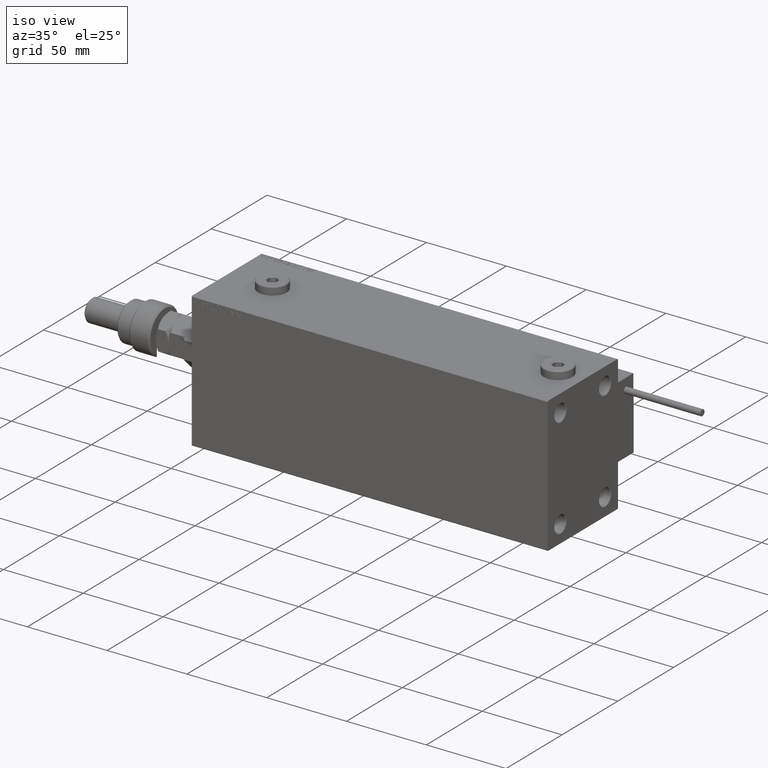
[diagram: clean part render]
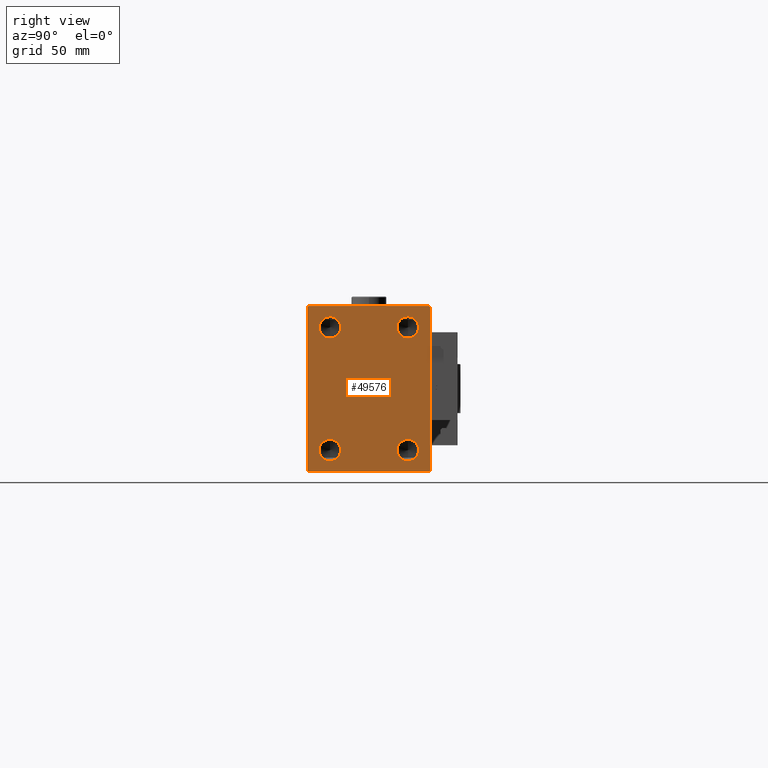
[diagram: tour spotlight — one face highlighted and labeled with its STEP entity id]
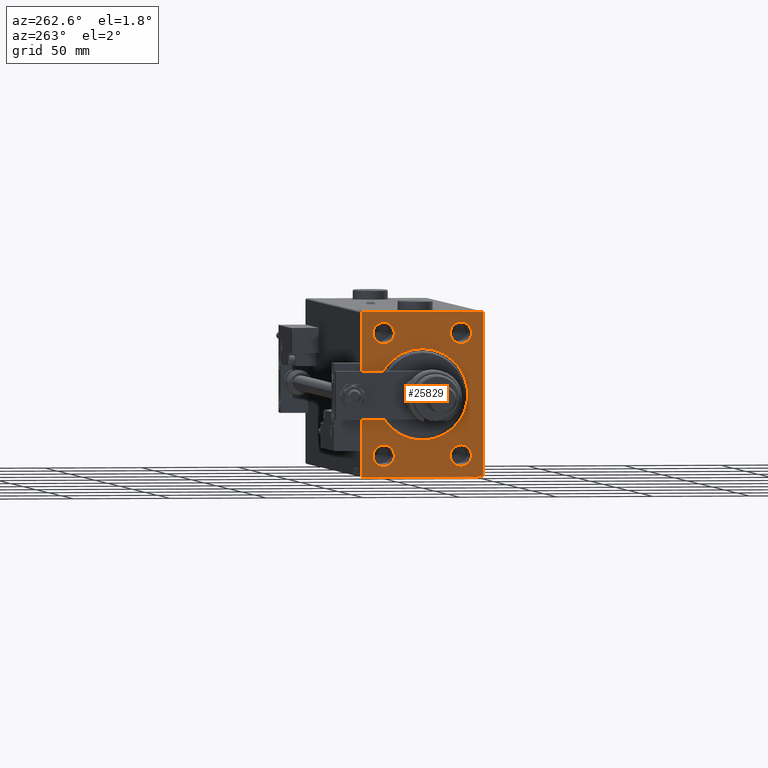
[diagram: tour spotlight — one face highlighted and labeled with its STEP entity id]
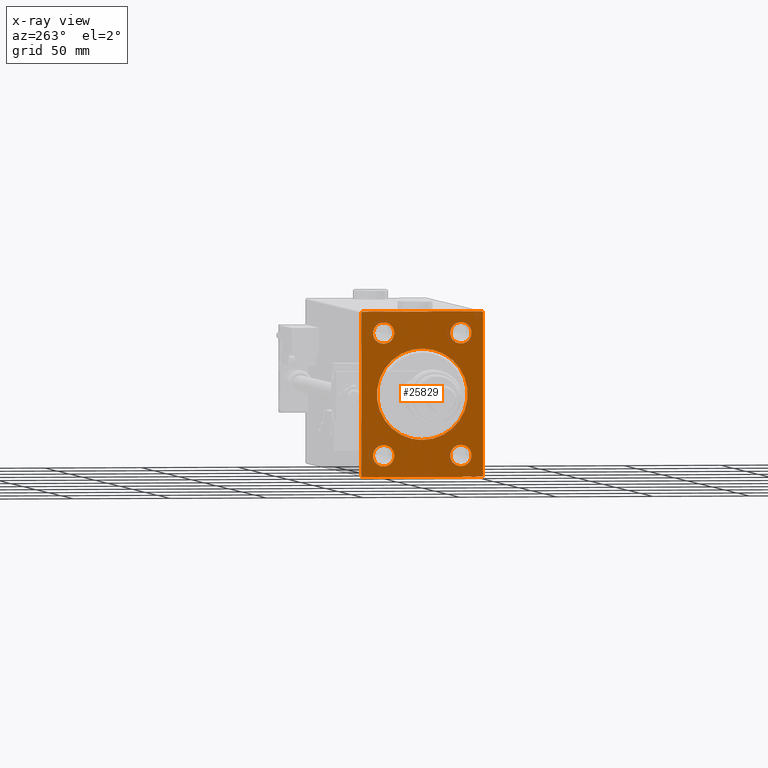
[diagram: x-ray of the same camera — body ghosted, this tour face saturated]
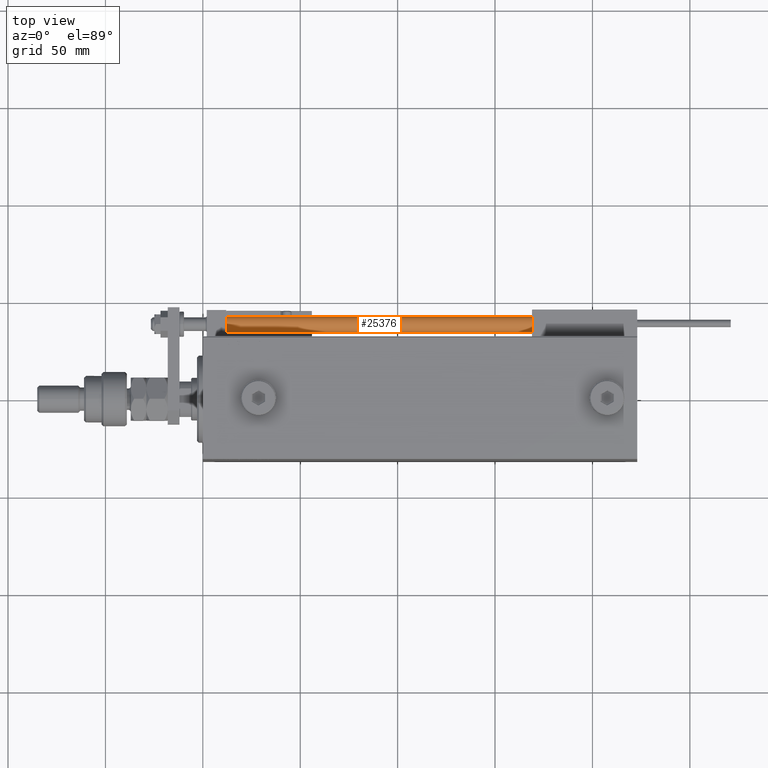
[diagram: tour spotlight — one face highlighted and labeled with its STEP entity id]
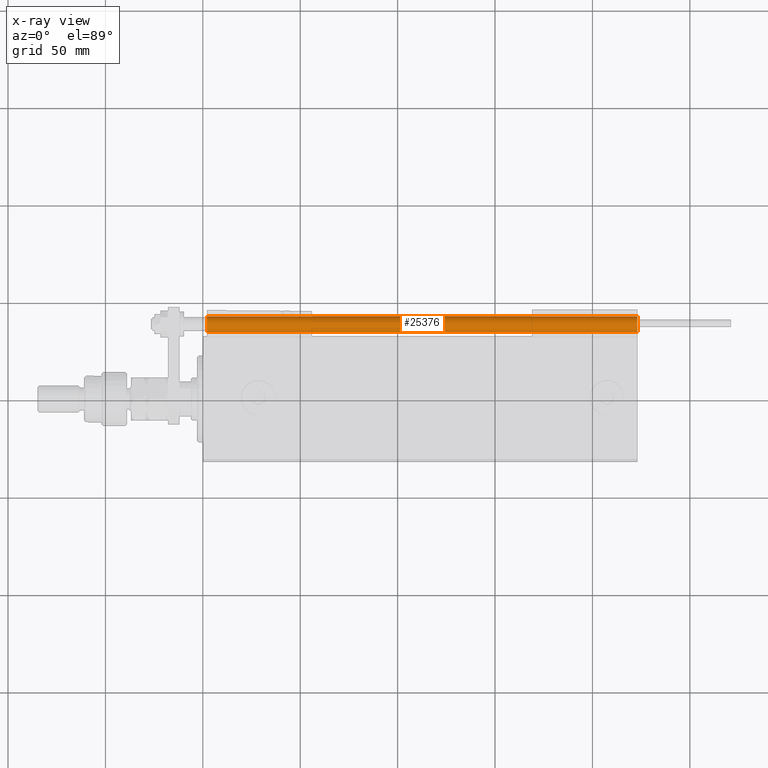
[diagram: x-ray of the same camera — body ghosted, this tour face saturated]
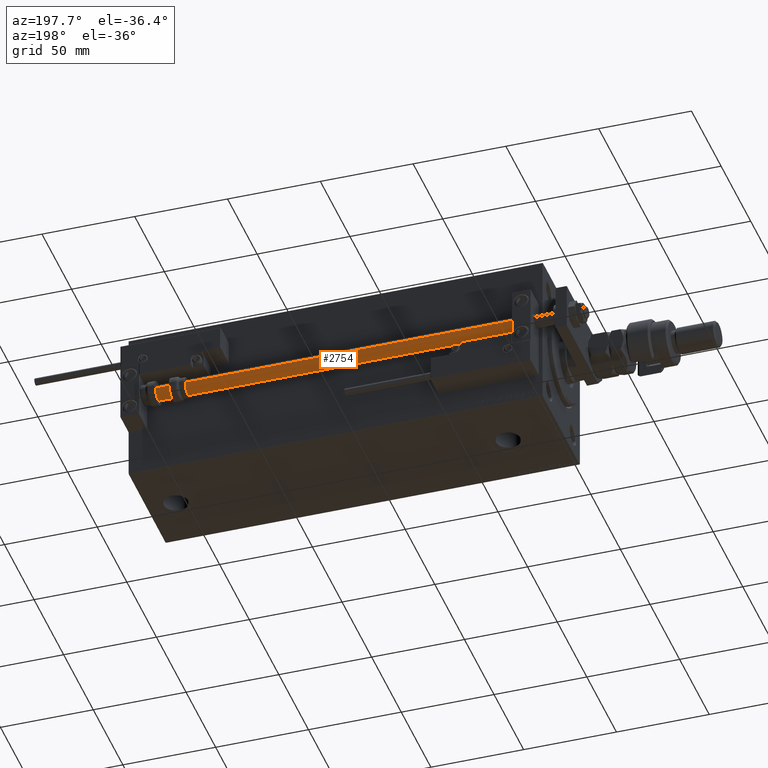
[diagram: tour spotlight — one face highlighted and labeled with its STEP entity id]
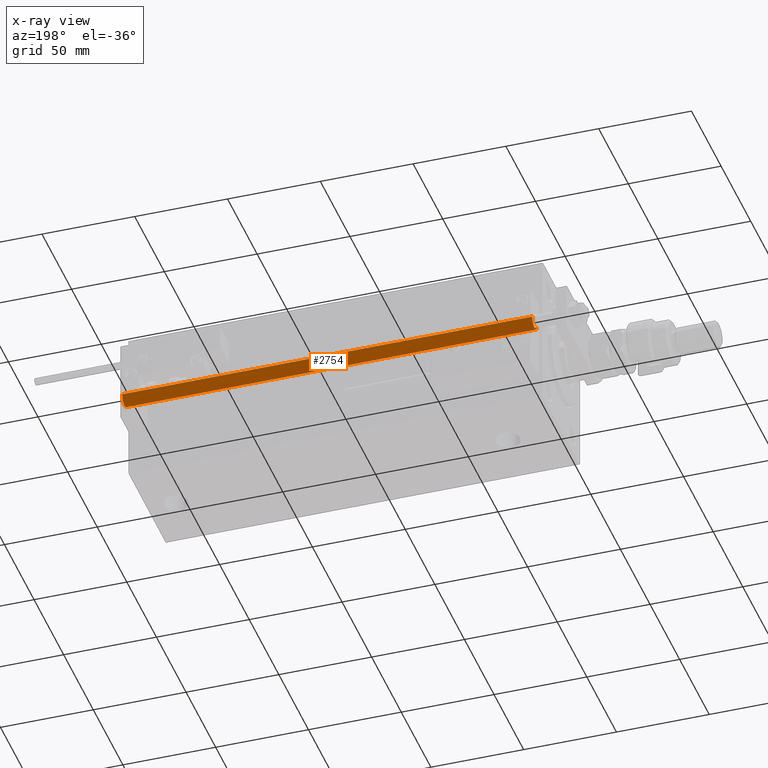
[diagram: x-ray of the same camera — body ghosted, this tour face saturated]
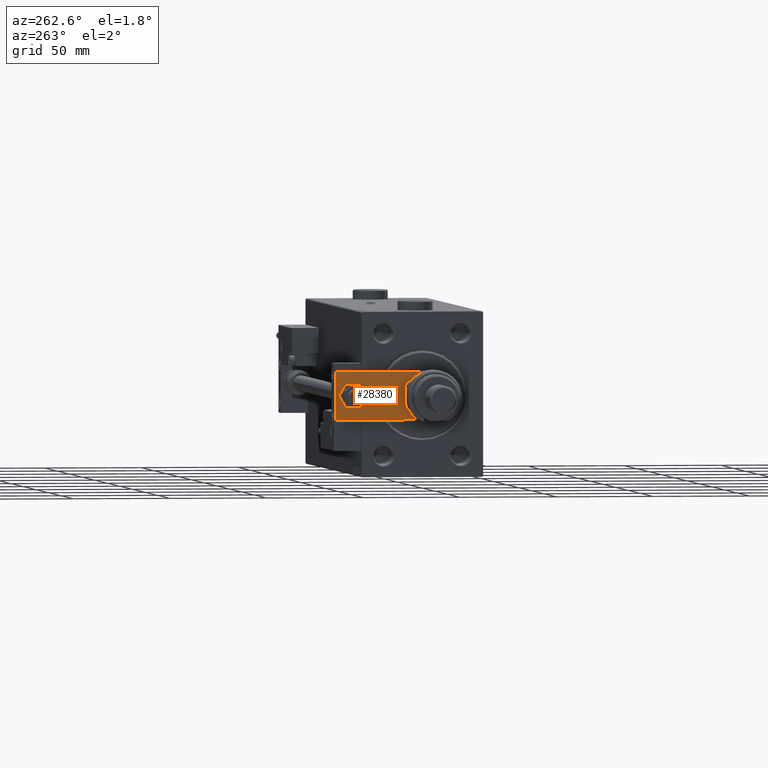
[diagram: tour spotlight — one face highlighted and labeled with its STEP entity id]
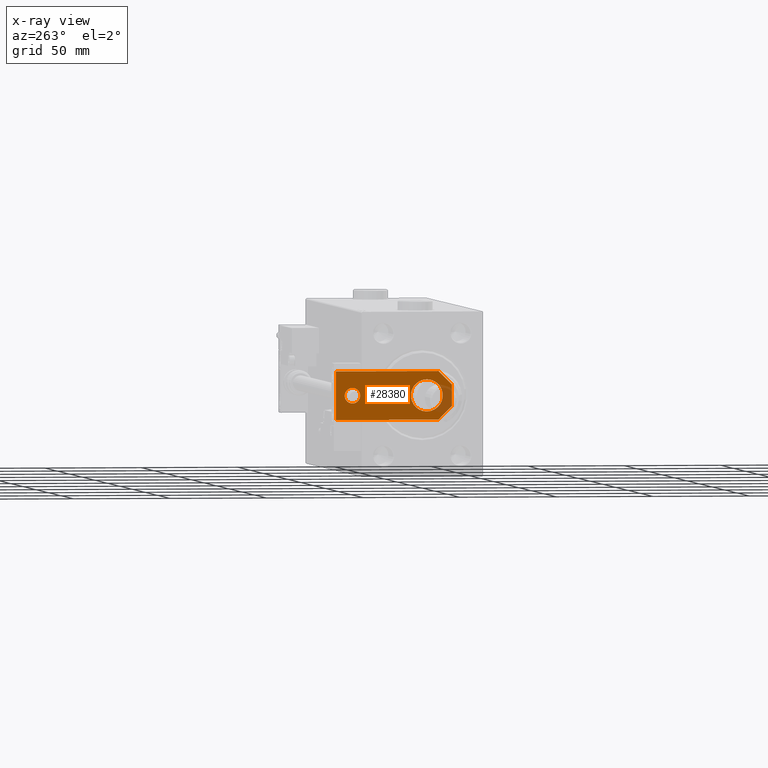
[diagram: x-ray of the same camera — body ghosted, this tour face saturated]
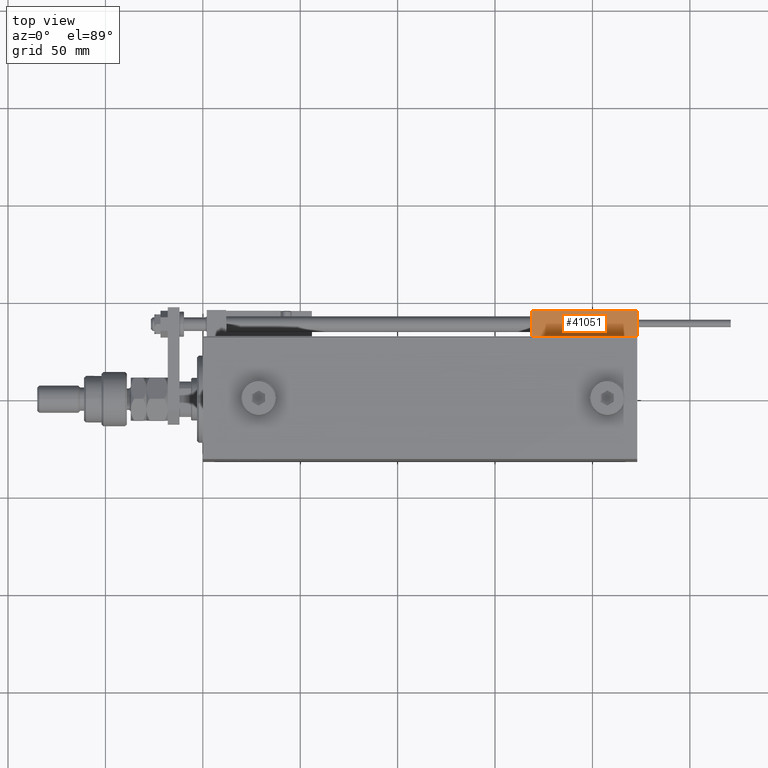
[diagram: tour spotlight — one face highlighted and labeled with its STEP entity id]
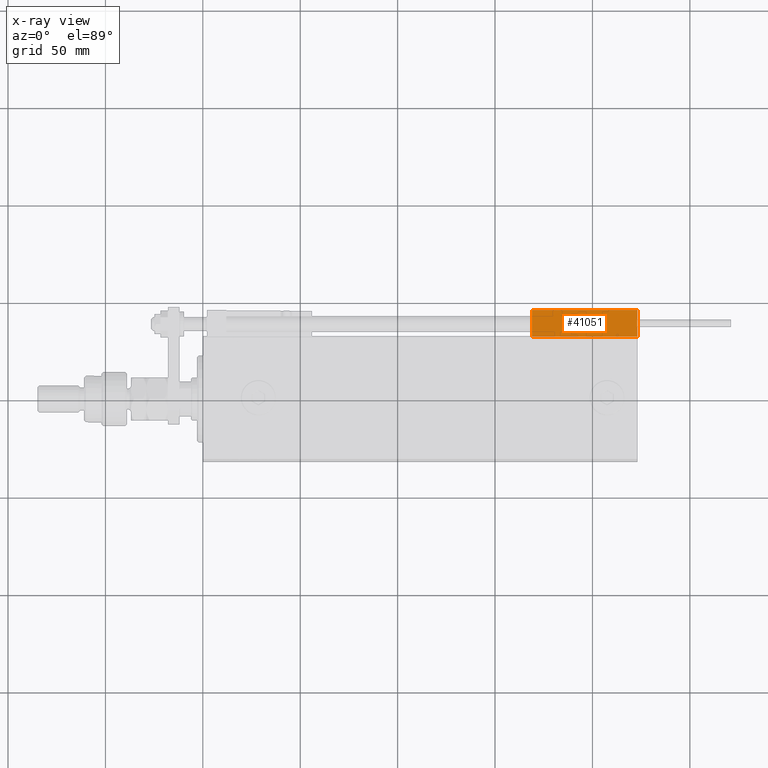
[diagram: x-ray of the same camera — body ghosted, this tour face saturated]
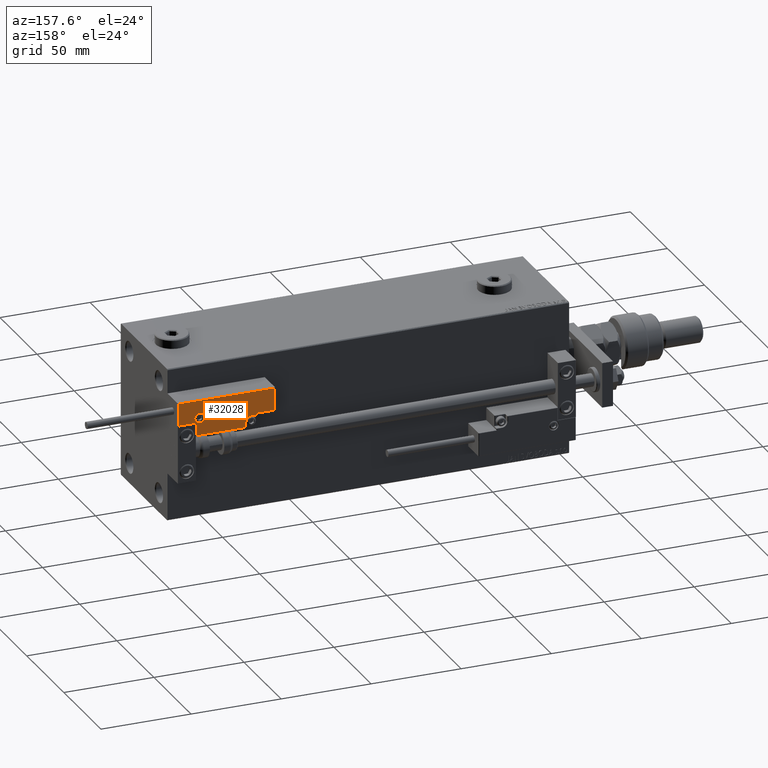
[diagram: tour spotlight — one face highlighted and labeled with its STEP entity id]
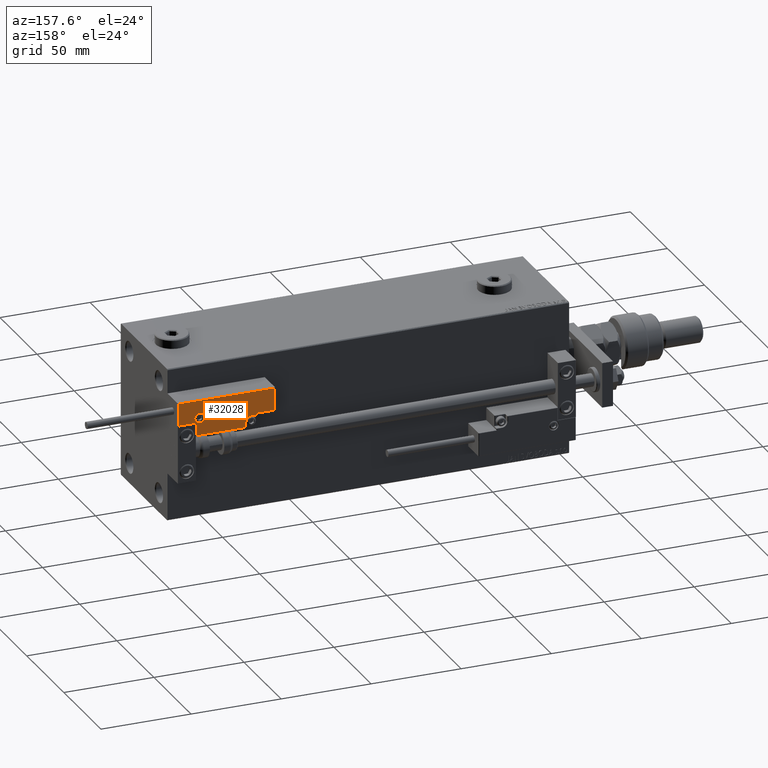
[diagram: tour spotlight — one face highlighted and labeled with its STEP entity id]
A machine part: a face-by-face anatomy tour. The part has 1457 B-rep faces; the first image is the clean iso view, then the 8 largest visible faces are spotlighted one at a time (largest first), each with its STEP entity span.

Face 1 — right view, entity #49576. In plain terms, the highlighted planar face has unit normal (1, 0, 0).
Definition (entity closure, byte-faithful):
#42 = VECTOR ( 'NONE', #34737, 1000.000000000000000 ) ;
#257 = VERTEX_POINT ( 'NONE', #47741 ) ;
#484 = VECTOR ( 'NONE', #48996, 999.9999999999998863 ) ;
#611 = VERTEX_POINT ( 'NONE', #13521 ) ;
#902 = DIRECTION ( 'NONE',  ( 0.000000000000000000, 1.000000000000000000, 0.000000000000000000 ) ) ;
#1048 = DIRECTION ( 'NONE',  ( 0.000000000000000000, 0.000000000000000000, -1.000000000000000000 ) ) ;
#1592 = CIRCLE ( 'NONE', #15923, 5.500000000000032863 ) ;
#2209 = LINE ( 'NONE', #40324, #484 ) ;
#2357 = DIRECTION ( 'NONE',  ( 0.000000000000000000, 0.000000000000000000, -1.000000000000000000 ) ) ;
#2496 = PLANE ( 'NONE',  #10349 ) ;
#2946 = ORIENTED_EDGE ( 'NONE', *, *, #44337, .F. ) ;
#3054 = VERTEX_POINT ( 'NONE', #47982 ) ;
#4523 = ORIENTED_EDGE ( 'NONE', *, *, #55194, .F. ) ;
#4542 = EDGE_LOOP ( 'NONE', ( #31335, #13407 ) ) ;
#5049 = LINE ( 'NONE', #18227, #42 ) ;
#5752 = DIRECTION ( 'NONE',  ( 0.000000000000000000, 0.000000000000000000, -1.000000000000000000 ) ) ;
#5892 = FACE_BOUND ( 'NONE', #55040, .T. ) ;
#5931 = CARTESIAN_POINT ( 'NONE',  ( 223.0000000000000000, -31.00000000000001421, 42.49999999999998579 ) ) ;
#5972 = CARTESIAN_POINT ( 'NONE',  ( 223.0000000000000000, -31.50000000000000000, -41.99999999999998579 ) ) ;
#6745 = CIRCLE ( 'NONE', #30890, 5.500000000000032863 ) ;
#7618 = EDGE_CURVE ( 'NONE', #3054, #50230, #35335, .T. ) ;
#7917 = DIRECTION ( 'NONE',  ( 0.000000000000000000, 0.000000000000000000, -1.000000000000000000 ) ) ;
#7964 = CARTESIAN_POINT ( 'NONE',  ( 223.0000000000000000, -36.74999999999956657, 36.75000000000059686 ) ) ;
#8292 = EDGE_CURVE ( 'NONE', #46576, #54132, #1592, .T. ) ;
#8960 = CARTESIAN_POINT ( 'NONE',  ( 223.0000000000000000, 31.50000000000000000, 41.99999999999997868 ) ) ;
#9074 = CARTESIAN_POINT ( 'NONE',  ( 223.0000000000000000, 19.99999999999999645, 37.00000000000003553 ) ) ;
#9410 = DIRECTION ( 'NONE',  ( 1.000000000000000000, -0.000000000000000000, -0.000000000000000000 ) ) ;
#9841 = FACE_BOUND ( 'NONE', #37235, .T. ) ;
#10349 = AXIS2_PLACEMENT_3D ( 'NONE', #26923, #19598, #40341 ) ;
#10863 = VECTOR ( 'NONE', #37643, 1000.000000000000114 ) ;
#10905 = CARTESIAN_POINT ( 'NONE',  ( 223.0000000000000000, 36.75000000000042633, 36.74999999999941025 ) ) ;
#12361 = CARTESIAN_POINT ( 'NONE',  ( 223.0000000000000000, 19.99999999999999645, -31.50000000000000000 ) ) ;
#12775 = EDGE_CURVE ( 'NONE', #257, #44044, #49445, .T. ) ;
#12807 = DIRECTION ( 'NONE',  ( 1.000000000000000000, -0.000000000000000000, -0.000000000000000000 ) ) ;
#13110 = CIRCLE ( 'NONE', #14005, 5.500000000000032863 ) ;
#13407 = ORIENTED_EDGE ( 'NONE', *, *, #14193, .F. ) ;
#13521 = CARTESIAN_POINT ( 'NONE',  ( 223.0000000000000000, -31.50000000000000000, 42.00000000000001421 ) ) ;
#13648 = CARTESIAN_POINT ( 'NONE',  ( 223.0000000000000000, -20.00000000000000355, -31.50000000000000000 ) ) ;
#13682 = ORIENTED_EDGE ( 'NONE', *, *, #26711, .F. ) ;
#14005 = AXIS2_PLACEMENT_3D ( 'NONE', #46434, #21797, #29632 ) ;
#14193 = EDGE_CURVE ( 'NONE', #54132, #46576, #19570, .T. ) ;
#14524 = ORIENTED_EDGE ( 'NONE', *, *, #28557, .T. ) ;
#14815 = CIRCLE ( 'NONE', #25521, 5.500000000000032863 ) ;
#15923 = AXIS2_PLACEMENT_3D ( 'NONE', #18970, #18152, #1048 ) ;
#15974 = VERTEX_POINT ( 'NONE', #43540 ) ;
#16877 = VERTEX_POINT ( 'NONE', #5931 ) ;
#17414 = CARTESIAN_POINT ( 'NONE',  ( 223.0000000000000000, 19.99999999999999645, 25.99999999999996447 ) ) ;
#18025 = EDGE_LOOP ( 'NONE', ( #2946, #24860 ) ) ;
#18152 = DIRECTION ( 'NONE',  ( 1.000000000000000000, -0.000000000000000000, -0.000000000000000000 ) ) ;
#18227 = CARTESIAN_POINT ( 'NONE',  ( 223.0000000000000000, -36.75000000000065370, -36.74999999999911893 ) ) ;
#18792 = FACE_BOUND ( 'NONE', #4542, .T. ) ;
#18970 = CARTESIAN_POINT ( 'NONE',  ( 223.0000000000000000, 19.99999999999999645, 31.50000000000000000 ) ) ;
#19058 = FACE_BOUND ( 'NONE', #18025, .T. ) ;
#19093 = EDGE_CURVE ( 'NONE', #16877, #611, #25316, .T. ) ;
#19105 = EDGE_CURVE ( 'NONE', #45341, #16877, #50801, .T. ) ;
#19180 = CARTESIAN_POINT ( 'NONE',  ( 223.0000000000000000, -20.00000000000000355, -31.50000000000000000 ) ) ;
#19327 = EDGE_CURVE ( 'NONE', #611, #26515, #51162, .T. ) ;
#19374 = ORIENTED_EDGE ( 'NONE', *, *, #7618, .T. ) ;
#19391 = VERTEX_POINT ( 'NONE', #21482 ) ;
#19570 = CIRCLE ( 'NONE', #20475, 5.500000000000032863 ) ;
#19598 = DIRECTION ( 'NONE',  ( 1.000000000000000000, 0.000000000000000000, 0.000000000000000000 ) ) ;
#20463 = CARTESIAN_POINT ( 'NONE',  ( 223.0000000000000000, -20.00000000000000355, 37.00000000000003553 ) ) ;
#20475 = AXIS2_PLACEMENT_3D ( 'NONE', #24716, #33931, #37861 ) ;
#21482 = CARTESIAN_POINT ( 'NONE',  ( 223.0000000000000000, 19.99999999999999645, -37.00000000000003553 ) ) ;
#21685 = VECTOR ( 'NONE', #36391, 999.9999999999998863 ) ;
#21797 = DIRECTION ( 'NONE',  ( 1.000000000000000000, -0.000000000000000000, -0.000000000000000000 ) ) ;
#21852 = VERTEX_POINT ( 'NONE', #43207 ) ;
#23809 = AXIS2_PLACEMENT_3D ( 'NONE', #25822, #25540, #7917 ) ;
#24427 = DIRECTION ( 'NONE',  ( 1.000000000000000000, -0.000000000000000000, -0.000000000000000000 ) ) ;
#24716 = CARTESIAN_POINT ( 'NONE',  ( 223.0000000000000000, 19.99999999999999645, 31.50000000000000000 ) ) ;
#24860 = ORIENTED_EDGE ( 'NONE', *, *, #52797, .F. ) ;
#24967 = ORIENTED_EDGE ( 'NONE', *, *, #47752, .F. ) ;
#25316 = LINE ( 'NONE', #7964, #10863 ) ;
#25521 = AXIS2_PLACEMENT_3D ( 'NONE', #12361, #24427, #41498 ) ;
#25540 = DIRECTION ( 'NONE',  ( 1.000000000000000000, -0.000000000000000000, -0.000000000000000000 ) ) ;
#25822 = CARTESIAN_POINT ( 'NONE',  ( 223.0000000000000000, -20.00000000000000355, 31.50000000000000000 ) ) ;
#26515 = VERTEX_POINT ( 'NONE', #5972 ) ;
#26711 = EDGE_CURVE ( 'NONE', #44918, #39797, #49741, .T. ) ;
#26923 = CARTESIAN_POINT ( 'NONE',  ( 223.0000000000000000, 0.000000000000000000, 0.000000000000000000 ) ) ;
#28204 = EDGE_CURVE ( 'NONE', #19391, #15974, #14815, .T. ) ;
#28437 = DIRECTION ( 'NONE',  ( 0.000000000000000000, -1.632680918566406547E-16, 1.000000000000000000 ) ) ;
#28557 = EDGE_CURVE ( 'NONE', #50230, #257, #2209, .T. ) ;
#28742 = AXIS2_PLACEMENT_3D ( 'NONE', #13648, #12807, #38562 ) ;
#29632 = DIRECTION ( 'NONE',  ( 0.000000000000000000, 0.000000000000000000, -1.000000000000000000 ) ) ;
#30424 = CARTESIAN_POINT ( 'NONE',  ( 223.0000000000000000, -31.50000000000000000, 42.49999999999998579 ) ) ;
#30890 = AXIS2_PLACEMENT_3D ( 'NONE', #19180, #32044, #2357 ) ;
#30957 = CARTESIAN_POINT ( 'NONE',  ( 223.0000000000000000, -20.00000000000000355, 31.50000000000000000 ) ) ;
#31335 = ORIENTED_EDGE ( 'NONE', *, *, #8292, .F. ) ;
#32044 = DIRECTION ( 'NONE',  ( 1.000000000000000000, -0.000000000000000000, -0.000000000000000000 ) ) ;
#33010 = ORIENTED_EDGE ( 'NONE', *, *, #46257, .T. ) ;
#33428 = DIRECTION ( 'NONE',  ( 0.000000000000000000, -1.000000000000000000, -1.101411730778925171E-16 ) ) ;
#33931 = DIRECTION ( 'NONE',  ( 1.000000000000000000, -0.000000000000000000, -0.000000000000000000 ) ) ;
#34695 = VECTOR ( 'NONE', #28437, 1000.000000000000000 ) ;
#34737 = DIRECTION ( 'NONE',  ( -0.000000000000000000, 0.7071067811865328068, -0.7071067811865622277 ) ) ;
#35335 = LINE ( 'NONE', #46905, #54325 ) ;
#35394 = ORIENTED_EDGE ( 'NONE', *, *, #19105, .T. ) ;
#36391 = DIRECTION ( 'NONE',  ( -0.000000000000000000, -0.7071067811865376918, 0.7071067811865574537 ) ) ;
#37021 = CARTESIAN_POINT ( 'NONE',  ( 223.0000000000000000, -20.00000000000000355, 25.99999999999996447 ) ) ;
#37235 = EDGE_LOOP ( 'NONE', ( #13682, #24967 ) ) ;
#37280 = ORIENTED_EDGE ( 'NONE', *, *, #38932, .T. ) ;
#37331 = ORIENTED_EDGE ( 'NONE', *, *, #28204, .F. ) ;
#37480 = VERTEX_POINT ( 'NONE', #40779 ) ;
#37643 = DIRECTION ( 'NONE',  ( 0.000000000000000000, -0.7071067811865573427, -0.7071067811865376918 ) ) ;
#37861 = DIRECTION ( 'NONE',  ( 0.000000000000000000, 0.000000000000000000, -1.000000000000000000 ) ) ;
#38562 = DIRECTION ( 'NONE',  ( 0.000000000000000000, 0.000000000000000000, -1.000000000000000000 ) ) ;
#38932 = EDGE_CURVE ( 'NONE', #26515, #3054, #5049, .T. ) ;
#39797 = VERTEX_POINT ( 'NONE', #37021 ) ;
#40272 = ORIENTED_EDGE ( 'NONE', *, *, #19327, .T. ) ;
#40319 = LINE ( 'NONE', #10905, #21685 ) ;
#40324 = CARTESIAN_POINT ( 'NONE',  ( 223.0000000000000000, 36.74999999999957367, -36.75000000000059686 ) ) ;
#40341 = DIRECTION ( 'NONE',  ( 0.000000000000000000, 0.000000000000000000, -1.000000000000000000 ) ) ;
#40779 = CARTESIAN_POINT ( 'NONE',  ( 223.0000000000000000, -20.00000000000000355, -37.00000000000003553 ) ) ;
#41498 = DIRECTION ( 'NONE',  ( 0.000000000000000000, 0.000000000000000000, -1.000000000000000000 ) ) ;
#41843 = CARTESIAN_POINT ( 'NONE',  ( 223.0000000000000000, 31.50000000000000000, 42.49999999999999289 ) ) ;
#43066 = VECTOR ( 'NONE', #51710, 1000.000000000000000 ) ;
#43207 = CARTESIAN_POINT ( 'NONE',  ( 223.0000000000000000, -20.00000000000000355, -25.99999999999996447 ) ) ;
#43540 = CARTESIAN_POINT ( 'NONE',  ( 223.0000000000000000, 19.99999999999999645, -25.99999999999996447 ) ) ;
#44001 = EDGE_LOOP ( 'NONE', ( #35394, #53708, #40272, #37280, #19374, #14524, #47340, #33010 ) ) ;
#44044 = VERTEX_POINT ( 'NONE', #8960 ) ;
#44110 = AXIS2_PLACEMENT_3D ( 'NONE', #30957, #9410, #5752 ) ;
#44337 = EDGE_CURVE ( 'NONE', #21852, #37480, #52908, .T. ) ;
#44819 = FACE_OUTER_BOUND ( 'NONE', #44001, .T. ) ;
#44850 = VECTOR ( 'NONE', #33428, 1000.000000000000000 ) ;
#44918 = VERTEX_POINT ( 'NONE', #20463 ) ;
#45341 = VERTEX_POINT ( 'NONE', #46417 ) ;
#46070 = CARTESIAN_POINT ( 'NONE',  ( 223.0000000000000000, 31.50000000000001421, -42.50000000000000711 ) ) ;
#46257 = EDGE_CURVE ( 'NONE', #44044, #45341, #40319, .T. ) ;
#46417 = CARTESIAN_POINT ( 'NONE',  ( 223.0000000000000000, 31.00000000000000000, 42.49999999999999289 ) ) ;
#46434 = CARTESIAN_POINT ( 'NONE',  ( 223.0000000000000000, 19.99999999999999645, -31.50000000000000000 ) ) ;
#46576 = VERTEX_POINT ( 'NONE', #9074 ) ;
#46905 = CARTESIAN_POINT ( 'NONE',  ( 223.0000000000000000, -31.50000000000000000, -42.50000000000000711 ) ) ;
#47340 = ORIENTED_EDGE ( 'NONE', *, *, #12775, .T. ) ;
#47741 = CARTESIAN_POINT ( 'NONE',  ( 223.0000000000000000, 31.50000000000001421, -42.00000000000000711 ) ) ;
#47752 = EDGE_CURVE ( 'NONE', #39797, #44918, #53054, .T. ) ;
#47982 = CARTESIAN_POINT ( 'NONE',  ( 223.0000000000000000, -31.00000000000000000, -42.50000000000000711 ) ) ;
#48996 = DIRECTION ( 'NONE',  ( -0.000000000000000000, 0.7071067811865574537, 0.7071067811865376918 ) ) ;
#49445 = LINE ( 'NONE', #46070, #34695 ) ;
#49576 = ADVANCED_FACE ( 'NONE', ( #18792, #9841, #19058, #5892, #44819 ), #2496, .T. ) ;
#49741 = CIRCLE ( 'NONE', #23809, 5.500000000000032863 ) ;
#50230 = VERTEX_POINT ( 'NONE', #54176 ) ;
#50801 = LINE ( 'NONE', #41843, #44850 ) ;
#51162 = LINE ( 'NONE', #30424, #43066 ) ;
#51710 = DIRECTION ( 'NONE',  ( 0.000000000000000000, 0.000000000000000000, -1.000000000000000000 ) ) ;
#52797 = EDGE_CURVE ( 'NONE', #37480, #21852, #6745, .T. ) ;
#52908 = CIRCLE ( 'NONE', #28742, 5.500000000000032863 ) ;
#53054 = CIRCLE ( 'NONE', #44110, 5.500000000000032863 ) ;
#53708 = ORIENTED_EDGE ( 'NONE', *, *, #19093, .T. ) ;
#54132 = VERTEX_POINT ( 'NONE', #17414 ) ;
#54176 = CARTESIAN_POINT ( 'NONE',  ( 223.0000000000000000, 31.00000000000000000, -42.50000000000000711 ) ) ;
#54325 = VECTOR ( 'NONE', #902, 1000.000000000000000 ) ;
#55040 = EDGE_LOOP ( 'NONE', ( #4523, #37331 ) ) ;
#55194 = EDGE_CURVE ( 'NONE', #15974, #19391, #13110, .T. ) ;

Face 2 — auxiliary view, entity #25829. An x-ray twin of the same camera follows (body ghosted, this face saturated) — the face is partly hidden behind the body. In plain terms, the highlighted planar face has unit normal (1, 0, 0).
Definition (entity closure, byte-faithful):
#591 = FACE_BOUND ( 'NONE', #50846, .T. ) ;
#784 = EDGE_CURVE ( 'NONE', #22796, #38732, #23600, .T. ) ;
#1000 = CARTESIAN_POINT ( 'NONE',  ( 0.000000000000000000, 19.99999999999999645, 31.50000000000000000 ) ) ;
#1001 = VECTOR ( 'NONE', #23012, 1000.000000000000000 ) ;
#1084 = LINE ( 'NONE', #47592, #31723 ) ;
#1096 = ORIENTED_EDGE ( 'NONE', *, *, #23545, .F. ) ;
#1485 = CARTESIAN_POINT ( 'NONE',  ( 0.000000000000000000, 31.00000000000000000, -42.50000000000000711 ) ) ;
#1818 = AXIS2_PLACEMENT_3D ( 'NONE', #42502, #32990, #46706 ) ;
#1880 = ORIENTED_EDGE ( 'NONE', *, *, #47847, .T. ) ;
#2362 = VERTEX_POINT ( 'NONE', #49757 ) ;
#2756 = ORIENTED_EDGE ( 'NONE', *, *, #41140, .T. ) ;
#3775 = DIRECTION ( 'NONE',  ( 0.000000000000000000, 0.000000000000000000, -1.000000000000000000 ) ) ;
#3897 = LINE ( 'NONE', #41459, #39260 ) ;
#4141 = DIRECTION ( 'NONE',  ( 0.000000000000000000, 0.000000000000000000, -1.000000000000000000 ) ) ;
#6092 = LINE ( 'NONE', #52590, #12169 ) ;
#6435 = EDGE_CURVE ( 'NONE', #20532, #23761, #49763, .T. ) ;
#6738 = ORIENTED_EDGE ( 'NONE', *, *, #9376, .T. ) ;
#6811 = AXIS2_PLACEMENT_3D ( 'NONE', #15482, #32271, #45156 ) ;
#8474 = ORIENTED_EDGE ( 'NONE', *, *, #784, .T. ) ;
#9012 = EDGE_LOOP ( 'NONE', ( #15790, #23566, #25148, #53405, #51529, #15594, #1096, #13432 ) ) ;
#9262 = EDGE_CURVE ( 'NONE', #38732, #22796, #52449, .T. ) ;
#9376 = EDGE_CURVE ( 'NONE', #50856, #28592, #44418, .T. ) ;
#9844 = DIRECTION ( 'NONE',  ( 1.000000000000000000, 0.000000000000000000, 0.000000000000000000 ) ) ;
#10375 = CARTESIAN_POINT ( 'NONE',  ( 0.000000000000000000, -31.50000000000000000, 42.00000000000001421 ) ) ;
#10490 = CARTESIAN_POINT ( 'NONE',  ( 0.000000000000000000, -31.50000000000000000, 42.00000000000001421 ) ) ;
#11697 = CARTESIAN_POINT ( 'NONE',  ( 0.000000000000000000, -20.00000000000000355, -25.99999999999996803 ) ) ;
#12169 = VECTOR ( 'NONE', #53684, 1000.000000000000000 ) ;
#12215 = LINE ( 'NONE', #46368, #28351 ) ;
#12472 = CARTESIAN_POINT ( 'NONE',  ( 0.000000000000000000, 19.99999999999999645, -31.50000000000000000 ) ) ;
#13367 = EDGE_LOOP ( 'NONE', ( #32206, #25423 ) ) ;
#13432 = ORIENTED_EDGE ( 'NONE', *, *, #15183, .T. ) ;
#13891 = DIRECTION ( 'NONE',  ( 1.000000000000000000, 0.000000000000000000, 0.000000000000000000 ) ) ;
#14398 = EDGE_LOOP ( 'NONE', ( #36715, #2756 ) ) ;
#15183 = EDGE_CURVE ( 'NONE', #38727, #23254, #3897, .T. ) ;
#15482 = CARTESIAN_POINT ( 'NONE',  ( 0.000000000000000000, 0.000000000000000000, 0.000000000000000000 ) ) ;
#15490 = VERTEX_POINT ( 'NONE', #37188 ) ;
#15594 = ORIENTED_EDGE ( 'NONE', *, *, #42949, .T. ) ;
#15790 = ORIENTED_EDGE ( 'NONE', *, *, #43957, .F. ) ;
#16480 = DIRECTION ( 'NONE',  ( 0.000000000000000000, 0.000000000000000000, -1.000000000000000000 ) ) ;
#16486 = CARTESIAN_POINT ( 'NONE',  ( 0.000000000000000000, -20.00000000000000355, -37.00000000000003553 ) ) ;
#17377 = EDGE_CURVE ( 'NONE', #34858, #26673, #22408, .T. ) ;
#17691 = DIRECTION ( 'NONE',  ( 0.000000000000000000, 0.000000000000000000, -1.000000000000000000 ) ) ;
#18403 = EDGE_CURVE ( 'NONE', #30976, #15490, #49246, .T. ) ;
#18608 = AXIS2_PLACEMENT_3D ( 'NONE', #32446, #49534, #36396 ) ;
#18651 = DIRECTION ( 'NONE',  ( 0.000000000000000000, 0.000000000000000000, -1.000000000000000000 ) ) ;
#19326 = LINE ( 'NONE', #44545, #30466 ) ;
#20532 = VERTEX_POINT ( 'NONE', #38224 ) ;
#20625 = DIRECTION ( 'NONE',  ( -0.000000000000000000, 0.7071067811865376918, -0.7071067811865574537 ) ) ;
#20748 = CARTESIAN_POINT ( 'NONE',  ( 0.000000000000000000, -31.50000000000000000, -41.99999999999998579 ) ) ;
#20760 = ORIENTED_EDGE ( 'NONE', *, *, #9262, .T. ) ;
#21282 = EDGE_LOOP ( 'NONE', ( #6738, #22493 ) ) ;
#21891 = FACE_BOUND ( 'NONE', #14398, .T. ) ;
#22408 = CIRCLE ( 'NONE', #1818, 5.500000000000032863 ) ;
#22493 = ORIENTED_EDGE ( 'NONE', *, *, #47744, .T. ) ;
#22731 = FACE_BOUND ( 'NONE', #27185, .T. ) ;
#22796 = VERTEX_POINT ( 'NONE', #54768 ) ;
#23012 = DIRECTION ( 'NONE',  ( 0.000000000000000000, 0.000000000000000000, -1.000000000000000000 ) ) ;
#23254 = VERTEX_POINT ( 'NONE', #20748 ) ;
#23545 = EDGE_CURVE ( 'NONE', #38727, #26528, #41614, .T. ) ;
#23566 = ORIENTED_EDGE ( 'NONE', *, *, #53411, .T. ) ;
#23600 = CIRCLE ( 'NONE', #52223, 5.500000000000032863 ) ;
#23761 = VERTEX_POINT ( 'NONE', #52777 ) ;
#24676 = VECTOR ( 'NONE', #35877, 1000.000000000000114 ) ;
#24802 = CARTESIAN_POINT ( 'NONE',  ( 0.000000000000000000, 0.000000000000000000, 0.000000000000000000 ) ) ;
#25108 = AXIS2_PLACEMENT_3D ( 'NONE', #38027, #42510, #16480 ) ;
#25148 = ORIENTED_EDGE ( 'NONE', *, *, #50633, .F. ) ;
#25423 = ORIENTED_EDGE ( 'NONE', *, *, #6435, .T. ) ;
#25638 = AXIS2_PLACEMENT_3D ( 'NONE', #24802, #41876, #30084 ) ;
#25813 = FACE_OUTER_BOUND ( 'NONE', #9012, .T. ) ;
#25829 = ADVANCED_FACE ( 'NONE', ( #47647, #31107, #591, #22731, #21891, #25813 ), #39791, .F. ) ;
#26234 = CIRCLE ( 'NONE', #44980, 5.500000000000032863 ) ;
#26528 = VERTEX_POINT ( 'NONE', #1485 ) ;
#26584 = EDGE_CURVE ( 'NONE', #23761, #20532, #38106, .T. ) ;
#26673 = VERTEX_POINT ( 'NONE', #31715 ) ;
#26730 = CARTESIAN_POINT ( 'NONE',  ( 0.000000000000000000, -31.00000000000001421, 42.49999999999998579 ) ) ;
#26842 = AXIS2_PLACEMENT_3D ( 'NONE', #12472, #46347, #3775 ) ;
#26953 = DIRECTION ( 'NONE',  ( 0.000000000000000000, 0.000000000000000000, -1.000000000000000000 ) ) ;
#27185 = EDGE_LOOP ( 'NONE', ( #47273, #1880 ) ) ;
#27322 = AXIS2_PLACEMENT_3D ( 'NONE', #34202, #9844, #17691 ) ;
#27901 = CARTESIAN_POINT ( 'NONE',  ( 0.000000000000000000, -31.50000000000000000, -42.50000000000000711 ) ) ;
#28351 = VECTOR ( 'NONE', #20625, 999.9999999999998863 ) ;
#28586 = CIRCLE ( 'NONE', #26842, 5.500000000000032863 ) ;
#28592 = VERTEX_POINT ( 'NONE', #16486 ) ;
#28887 = EDGE_CURVE ( 'NONE', #31602, #33219, #6092, .T. ) ;
#29033 = CARTESIAN_POINT ( 'NONE',  ( 0.000000000000000000, 19.99999999999999645, -25.99999999999996803 ) ) ;
#30084 = DIRECTION ( 'NONE',  ( 0.000000000000000000, 0.000000000000000000, -1.000000000000000000 ) ) ;
#30466 = VECTOR ( 'NONE', #52956, 999.9999999999998863 ) ;
#30976 = VERTEX_POINT ( 'NONE', #29033 ) ;
#31107 = FACE_BOUND ( 'NONE', #21282, .T. ) ;
#31394 = CARTESIAN_POINT ( 'NONE',  ( 0.000000000000000000, -31.50000000000000000, 42.49999999999998579 ) ) ;
#31602 = VERTEX_POINT ( 'NONE', #35416 ) ;
#31715 = CARTESIAN_POINT ( 'NONE',  ( 0.000000000000000000, 19.99999999999999645, 25.99999999999996803 ) ) ;
#31723 = VECTOR ( 'NONE', #47854, 1000.000000000000000 ) ;
#32206 = ORIENTED_EDGE ( 'NONE', *, *, #26584, .T. ) ;
#32271 = DIRECTION ( 'NONE',  ( 1.000000000000000000, 0.000000000000000000, 0.000000000000000000 ) ) ;
#32314 = EDGE_CURVE ( 'NONE', #2362, #33219, #12215, .T. ) ;
#32437 = AXIS2_PLACEMENT_3D ( 'NONE', #1000, #43298, #39925 ) ;
#32446 = CARTESIAN_POINT ( 'NONE',  ( 0.000000000000000000, -20.00000000000000355, 31.50000000000000000 ) ) ;
#32990 = DIRECTION ( 'NONE',  ( 1.000000000000000000, 0.000000000000000000, 0.000000000000000000 ) ) ;
#33219 = VERTEX_POINT ( 'NONE', #38937 ) ;
#34202 = CARTESIAN_POINT ( 'NONE',  ( 0.000000000000000000, 0.000000000000000000, 0.000000000000000000 ) ) ;
#34858 = VERTEX_POINT ( 'NONE', #45374 ) ;
#35416 = CARTESIAN_POINT ( 'NONE',  ( 0.000000000000000000, 31.50000000000001421, -42.00000000000000711 ) ) ;
#35877 = DIRECTION ( 'NONE',  ( -0.000000000000000000, 0.7071067811865573427, 0.7071067811865376918 ) ) ;
#36396 = DIRECTION ( 'NONE',  ( 0.000000000000000000, 0.000000000000000000, -1.000000000000000000 ) ) ;
#36715 = ORIENTED_EDGE ( 'NONE', *, *, #18403, .T. ) ;
#36940 = CIRCLE ( 'NONE', #32437, 5.500000000000032863 ) ;
#37188 = CARTESIAN_POINT ( 'NONE',  ( 0.000000000000000000, 19.99999999999999645, -37.00000000000003553 ) ) ;
#37218 = CARTESIAN_POINT ( 'NONE',  ( 0.000000000000000000, -20.00000000000000355, -31.50000000000000000 ) ) ;
#37292 = CARTESIAN_POINT ( 'NONE',  ( 0.000000000000000000, -31.00000000000000000, -42.50000000000000711 ) ) ;
#38027 = CARTESIAN_POINT ( 'NONE',  ( 0.000000000000000000, 19.99999999999999645, -31.50000000000000000 ) ) ;
#38106 = CIRCLE ( 'NONE', #6811, 23.50000000000001776 ) ;
#38224 = CARTESIAN_POINT ( 'NONE',  ( 0.000000000000000000, 2.877919977996282293E-15, -23.50000000000001776 ) ) ;
#38412 = VERTEX_POINT ( 'NONE', #10490 ) ;
#38727 = VERTEX_POINT ( 'NONE', #37292 ) ;
#38732 = VERTEX_POINT ( 'NONE', #54367 ) ;
#38937 = CARTESIAN_POINT ( 'NONE',  ( 0.000000000000000000, 31.50000000000000000, 41.99999999999997868 ) ) ;
#39063 = AXIS2_PLACEMENT_3D ( 'NONE', #37218, #45897, #4141 ) ;
#39260 = VECTOR ( 'NONE', #46201, 1000.000000000000000 ) ;
#39526 = LINE ( 'NONE', #10375, #24676 ) ;
#39791 = PLANE ( 'NONE',  #27322 ) ;
#39925 = DIRECTION ( 'NONE',  ( 0.000000000000000000, 0.000000000000000000, -1.000000000000000000 ) ) ;
#41140 = EDGE_CURVE ( 'NONE', #15490, #30976, #28586, .T. ) ;
#41459 = CARTESIAN_POINT ( 'NONE',  ( 0.000000000000000000, -31.00000000000000000, -42.50000000000000711 ) ) ;
#41614 = LINE ( 'NONE', #27901, #44987 ) ;
#41876 = DIRECTION ( 'NONE',  ( 1.000000000000000000, 0.000000000000000000, 0.000000000000000000 ) ) ;
#42502 = CARTESIAN_POINT ( 'NONE',  ( 0.000000000000000000, 19.99999999999999645, 31.50000000000000000 ) ) ;
#42510 = DIRECTION ( 'NONE',  ( 1.000000000000000000, 0.000000000000000000, 0.000000000000000000 ) ) ;
#42949 = EDGE_CURVE ( 'NONE', #31602, #26528, #19326, .T. ) ;
#43298 = DIRECTION ( 'NONE',  ( 1.000000000000000000, 0.000000000000000000, 0.000000000000000000 ) ) ;
#43957 = EDGE_CURVE ( 'NONE', #38412, #23254, #53780, .T. ) ;
#44295 = CARTESIAN_POINT ( 'NONE',  ( 0.000000000000000000, -20.00000000000000355, 31.50000000000000000 ) ) ;
#44418 = CIRCLE ( 'NONE', #39063, 5.500000000000032863 ) ;
#44545 = CARTESIAN_POINT ( 'NONE',  ( 0.000000000000000000, 31.50000000000001421, -42.00000000000000711 ) ) ;
#44873 = VERTEX_POINT ( 'NONE', #26730 ) ;
#44980 = AXIS2_PLACEMENT_3D ( 'NONE', #47770, #13891, #18651 ) ;
#44987 = VECTOR ( 'NONE', #50292, 1000.000000000000000 ) ;
#45156 = DIRECTION ( 'NONE',  ( 0.000000000000000000, 0.000000000000000000, -1.000000000000000000 ) ) ;
#45374 = CARTESIAN_POINT ( 'NONE',  ( 0.000000000000000000, 19.99999999999999645, 37.00000000000003553 ) ) ;
#45897 = DIRECTION ( 'NONE',  ( 1.000000000000000000, 0.000000000000000000, 0.000000000000000000 ) ) ;
#46201 = DIRECTION ( 'NONE',  ( -0.000000000000000000, -0.7071067811865328068, 0.7071067811865622277 ) ) ;
#46347 = DIRECTION ( 'NONE',  ( 1.000000000000000000, 0.000000000000000000, 0.000000000000000000 ) ) ;
#46368 = CARTESIAN_POINT ( 'NONE',  ( 0.000000000000000000, 31.00000000000000000, 42.49999999999999289 ) ) ;
#46706 = DIRECTION ( 'NONE',  ( 0.000000000000000000, 0.000000000000000000, -1.000000000000000000 ) ) ;
#47273 = ORIENTED_EDGE ( 'NONE', *, *, #17377, .T. ) ;
#47592 = CARTESIAN_POINT ( 'NONE',  ( 0.000000000000000000, 31.50000000000000000, 42.49999999999999289 ) ) ;
#47647 = FACE_BOUND ( 'NONE', #13367, .T. ) ;
#47744 = EDGE_CURVE ( 'NONE', #28592, #50856, #26234, .T. ) ;
#47770 = CARTESIAN_POINT ( 'NONE',  ( 0.000000000000000000, -20.00000000000000355, -31.50000000000000000 ) ) ;
#47847 = EDGE_CURVE ( 'NONE', #26673, #34858, #36940, .T. ) ;
#47854 = DIRECTION ( 'NONE',  ( 0.000000000000000000, -1.000000000000000000, -1.101411730778925171E-16 ) ) ;
#48231 = DIRECTION ( 'NONE',  ( 1.000000000000000000, 0.000000000000000000, 0.000000000000000000 ) ) ;
#49246 = CIRCLE ( 'NONE', #25108, 5.500000000000032863 ) ;
#49534 = DIRECTION ( 'NONE',  ( 1.000000000000000000, 0.000000000000000000, 0.000000000000000000 ) ) ;
#49757 = CARTESIAN_POINT ( 'NONE',  ( 0.000000000000000000, 31.00000000000000000, 42.49999999999999289 ) ) ;
#49763 = CIRCLE ( 'NONE', #25638, 23.50000000000001776 ) ;
#50292 = DIRECTION ( 'NONE',  ( 0.000000000000000000, 1.000000000000000000, 0.000000000000000000 ) ) ;
#50633 = EDGE_CURVE ( 'NONE', #2362, #44873, #1084, .T. ) ;
#50846 = EDGE_LOOP ( 'NONE', ( #8474, #20760 ) ) ;
#50856 = VERTEX_POINT ( 'NONE', #11697 ) ;
#51529 = ORIENTED_EDGE ( 'NONE', *, *, #28887, .F. ) ;
#52223 = AXIS2_PLACEMENT_3D ( 'NONE', #44295, #48231, #26953 ) ;
#52449 = CIRCLE ( 'NONE', #18608, 5.500000000000032863 ) ;
#52590 = CARTESIAN_POINT ( 'NONE',  ( 0.000000000000000000, 31.50000000000001421, -42.50000000000000711 ) ) ;
#52777 = CARTESIAN_POINT ( 'NONE',  ( 0.000000000000000000, 0.000000000000000000, 23.50000000000001776 ) ) ;
#52956 = DIRECTION ( 'NONE',  ( 0.000000000000000000, -0.7071067811865574537, -0.7071067811865376918 ) ) ;
#53405 = ORIENTED_EDGE ( 'NONE', *, *, #32314, .T. ) ;
#53411 = EDGE_CURVE ( 'NONE', #38412, #44873, #39526, .T. ) ;
#53684 = DIRECTION ( 'NONE',  ( 0.000000000000000000, -1.632680918566406547E-16, 1.000000000000000000 ) ) ;
#53780 = LINE ( 'NONE', #31394, #1001 ) ;
#54367 = CARTESIAN_POINT ( 'NONE',  ( 0.000000000000000000, -20.00000000000000355, 25.99999999999996803 ) ) ;
#54768 = CARTESIAN_POINT ( 'NONE',  ( 0.000000000000000000, -20.00000000000000355, 37.00000000000003553 ) ) ;

Face 3 — top view, entity #25376. An x-ray twin of the same camera follows (body ghosted, this face saturated) — the face is partly hidden behind the body. In plain terms, the highlighted cylindrical surface (edge-blend (fillet) strip) has radius 4 mm, axis along (-1, -0, -0).
Definition (entity closure, byte-faithful):
#948 = AXIS2_PLACEMENT_3D ( 'NONE', #7664, #7941, #54972 ) ;
#2083 = LINE ( 'NONE', #23136, #55042 ) ;
#7664 = CARTESIAN_POINT ( 'NONE',  ( 0.000000000000000000, 0.000000000000000000, 2.000000000000029310 ) ) ;
#7941 = DIRECTION ( 'NONE',  ( -0.000000000000000000, -0.000000000000000000, 1.000000000000000000 ) ) ;
#8910 = VERTEX_POINT ( 'NONE', #49890 ) ;
#9368 = VERTEX_POINT ( 'NONE', #17046 ) ;
#11244 = CIRCLE ( 'NONE', #25572, 4.000000000000000000 ) ;
#11614 = DIRECTION ( 'NONE',  ( -1.000000000000000000, 0.000000000000000000, 0.000000000000000000 ) ) ;
#14106 = DIRECTION ( 'NONE',  ( 0.000000000000000000, 0.000000000000000000, 1.000000000000000000 ) ) ;
#15653 = VECTOR ( 'NONE', #32095, 1000.000000000000000 ) ;
#16459 = EDGE_LOOP ( 'NONE', ( #52117, #32916, #47673, #23058 ) ) ;
#17046 = CARTESIAN_POINT ( 'NONE',  ( 4.000000000000000000, 4.898587196589411843E-16, 2.000000000000029310 ) ) ;
#18586 = DIRECTION ( 'NONE',  ( 1.000000000000000000, 0.000000000000000000, 0.000000000000000000 ) ) ;
#18704 = CARTESIAN_POINT ( 'NONE',  ( -4.000000000000000000, 0.000000000000000000, 223.0000000000000000 ) ) ;
#20013 = CARTESIAN_POINT ( 'NONE',  ( 0.000000000000000000, 0.000000000000000000, 223.0000000000000000 ) ) ;
#21670 = EDGE_CURVE ( 'NONE', #9368, #50372, #41213, .T. ) ;
#23058 = ORIENTED_EDGE ( 'NONE', *, *, #52817, .F. ) ;
#23136 = CARTESIAN_POINT ( 'NONE',  ( -4.000000000000000000, 0.000000000000000000, 223.0000000000000000 ) ) ;
#23942 = FACE_OUTER_BOUND ( 'NONE', #16459, .T. ) ;
#24231 = CYLINDRICAL_SURFACE ( 'NONE', #46103, 4.000000000000000000 ) ;
#24808 = EDGE_CURVE ( 'NONE', #8910, #9368, #36319, .T. ) ;
#25376 = ADVANCED_FACE ( 'NONE', ( #23942 ), #24231, .T. ) ;
#25572 = AXIS2_PLACEMENT_3D ( 'NONE', #47709, #14106, #18586 ) ;
#25601 = EDGE_CURVE ( 'NONE', #8910, #55236, #11244, .T. ) ;
#32095 = DIRECTION ( 'NONE',  ( -0.000000000000000000, -0.000000000000000000, -1.000000000000000000 ) ) ;
#32916 = ORIENTED_EDGE ( 'NONE', *, *, #24808, .T. ) ;
#36319 = LINE ( 'NONE', #53390, #15653 ) ;
#36545 = DIRECTION ( 'NONE',  ( -0.000000000000000000, -0.000000000000000000, -1.000000000000000000 ) ) ;
#40892 = CARTESIAN_POINT ( 'NONE',  ( -4.000000000000000000, 0.000000000000000000, 2.000000000000029310 ) ) ;
#41213 = CIRCLE ( 'NONE', #948, 4.000000000000000000 ) ;
#46103 = AXIS2_PLACEMENT_3D ( 'NONE', #20013, #53343, #11614 ) ;
#47673 = ORIENTED_EDGE ( 'NONE', *, *, #21670, .T. ) ;
#47709 = CARTESIAN_POINT ( 'NONE',  ( 0.000000000000000000, 0.000000000000000000, 223.0000000000000000 ) ) ;
#49890 = CARTESIAN_POINT ( 'NONE',  ( 4.000000000000000000, 4.898587196589411843E-16, 223.0000000000000000 ) ) ;
#50372 = VERTEX_POINT ( 'NONE', #40892 ) ;
#52117 = ORIENTED_EDGE ( 'NONE', *, *, #25601, .F. ) ;
#52817 = EDGE_CURVE ( 'NONE', #55236, #50372, #2083, .T. ) ;
#53343 = DIRECTION ( 'NONE',  ( -0.000000000000000000, -0.000000000000000000, -1.000000000000000000 ) ) ;
#53390 = CARTESIAN_POINT ( 'NONE',  ( 4.000000000000000000, 4.898587196589411843E-16, 223.0000000000000000 ) ) ;
#54972 = DIRECTION ( 'NONE',  ( 1.000000000000000000, 0.000000000000000000, 0.000000000000000000 ) ) ;
#55042 = VECTOR ( 'NONE', #36545, 1000.000000000000000 ) ;
#55236 = VERTEX_POINT ( 'NONE', #18704 ) ;

Face 4 — auxiliary view, entity #2754. An x-ray twin of the same camera follows (body ghosted, this face saturated) — the face is partly hidden behind the body. In plain terms, the highlighted cylindrical surface (edge-blend (fillet) strip) has radius 4 mm, axis along (-1, -0, -0).
Definition (entity closure, byte-faithful):
#633 = CIRCLE ( 'NONE', #53397, 4.000000000000000000 ) ;
#1819 = FACE_OUTER_BOUND ( 'NONE', #6405, .T. ) ;
#2083 = LINE ( 'NONE', #23136, #55042 ) ;
#2754 = ADVANCED_FACE ( 'NONE', ( #1819 ), #53624, .T. ) ;
#6405 = EDGE_LOOP ( 'NONE', ( #7600, #7084, #54426, #41192 ) ) ;
#7084 = ORIENTED_EDGE ( 'NONE', *, *, #10998, .F. ) ;
#7600 = ORIENTED_EDGE ( 'NONE', *, *, #24808, .F. ) ;
#7677 = DIRECTION ( 'NONE',  ( 0.000000000000000000, 0.000000000000000000, 1.000000000000000000 ) ) ;
#8910 = VERTEX_POINT ( 'NONE', #49890 ) ;
#9368 = VERTEX_POINT ( 'NONE', #17046 ) ;
#9405 = AXIS2_PLACEMENT_3D ( 'NONE', #11051, #9971, #15274 ) ;
#9971 = DIRECTION ( 'NONE',  ( -0.000000000000000000, -0.000000000000000000, -1.000000000000000000 ) ) ;
#10998 = EDGE_CURVE ( 'NONE', #55236, #8910, #633, .T. ) ;
#11051 = CARTESIAN_POINT ( 'NONE',  ( 0.000000000000000000, 0.000000000000000000, 223.0000000000000000 ) ) ;
#15274 = DIRECTION ( 'NONE',  ( -1.000000000000000000, 0.000000000000000000, 0.000000000000000000 ) ) ;
#15653 = VECTOR ( 'NONE', #32095, 1000.000000000000000 ) ;
#17046 = CARTESIAN_POINT ( 'NONE',  ( 4.000000000000000000, 4.898587196589411843E-16, 2.000000000000029310 ) ) ;
#18704 = CARTESIAN_POINT ( 'NONE',  ( -4.000000000000000000, 0.000000000000000000, 223.0000000000000000 ) ) ;
#22180 = CIRCLE ( 'NONE', #51674, 4.000000000000000000 ) ;
#23136 = CARTESIAN_POINT ( 'NONE',  ( -4.000000000000000000, 0.000000000000000000, 223.0000000000000000 ) ) ;
#24808 = EDGE_CURVE ( 'NONE', #8910, #9368, #36319, .T. ) ;
#29704 = DIRECTION ( 'NONE',  ( 1.000000000000000000, 0.000000000000000000, 0.000000000000000000 ) ) ;
#32095 = DIRECTION ( 'NONE',  ( -0.000000000000000000, -0.000000000000000000, -1.000000000000000000 ) ) ;
#33139 = EDGE_CURVE ( 'NONE', #50372, #9368, #22180, .T. ) ;
#33146 = CARTESIAN_POINT ( 'NONE',  ( 0.000000000000000000, 0.000000000000000000, 223.0000000000000000 ) ) ;
#34451 = DIRECTION ( 'NONE',  ( -0.000000000000000000, -0.000000000000000000, 1.000000000000000000 ) ) ;
#36319 = LINE ( 'NONE', #53390, #15653 ) ;
#36545 = DIRECTION ( 'NONE',  ( -0.000000000000000000, -0.000000000000000000, -1.000000000000000000 ) ) ;
#38449 = DIRECTION ( 'NONE',  ( 1.000000000000000000, 0.000000000000000000, 0.000000000000000000 ) ) ;
#38664 = CARTESIAN_POINT ( 'NONE',  ( 0.000000000000000000, 0.000000000000000000, 2.000000000000029310 ) ) ;
#40892 = CARTESIAN_POINT ( 'NONE',  ( -4.000000000000000000, 0.000000000000000000, 2.000000000000029310 ) ) ;
#41192 = ORIENTED_EDGE ( 'NONE', *, *, #33139, .T. ) ;
#49890 = CARTESIAN_POINT ( 'NONE',  ( 4.000000000000000000, 4.898587196589411843E-16, 223.0000000000000000 ) ) ;
#50372 = VERTEX_POINT ( 'NONE', #40892 ) ;
#51674 = AXIS2_PLACEMENT_3D ( 'NONE', #38664, #34451, #29704 ) ;
#52817 = EDGE_CURVE ( 'NONE', #55236, #50372, #2083, .T. ) ;
#53390 = CARTESIAN_POINT ( 'NONE',  ( 4.000000000000000000, 4.898587196589411843E-16, 223.0000000000000000 ) ) ;
#53397 = AXIS2_PLACEMENT_3D ( 'NONE', #33146, #7677, #38449 ) ;
#53624 = CYLINDRICAL_SURFACE ( 'NONE', #9405, 4.000000000000000000 ) ;
#54426 = ORIENTED_EDGE ( 'NONE', *, *, #52817, .T. ) ;
#55042 = VECTOR ( 'NONE', #36545, 1000.000000000000000 ) ;
#55236 = VERTEX_POINT ( 'NONE', #18704 ) ;

Face 5 — auxiliary view, entity #28380. An x-ray twin of the same camera follows (body ghosted, this face saturated) — the face is partly hidden behind the body. In plain terms, the highlighted planar face has unit normal (-1, -0, 0).
Definition (entity closure, byte-faithful):
#1264 = EDGE_CURVE ( 'NONE', #31770, #38970, #38820, .T. ) ;
#3218 = DIRECTION ( 'NONE',  ( 1.000000000000000000, 0.000000000000000000, 0.000000000000000000 ) ) ;
#3462 = CARTESIAN_POINT ( 'NONE',  ( -2.750000000000013767, -2.750000000000005773, 6.000000000000000000 ) ) ;
#4060 = VERTEX_POINT ( 'NONE', #49093 ) ;
#4276 = DIRECTION ( 'NONE',  ( 1.000000000000000000, 0.000000000000000000, 0.000000000000000000 ) ) ;
#4561 = ORIENTED_EDGE ( 'NONE', *, *, #26370, .T. ) ;
#5023 = CARTESIAN_POINT ( 'NONE',  ( -1.432611055310774642E-16, 51.50000000000000000, 6.000000000000000000 ) ) ;
#5522 = EDGE_LOOP ( 'NONE', ( #8207, #37309, #23327, #4561, #28364, #28040 ) ) ;
#5596 = CARTESIAN_POINT ( 'NONE',  ( -4.000000000000000888, 51.50000000000000000, 6.000000000000000000 ) ) ;
#6246 = VECTOR ( 'NONE', #47145, 1000.000000000000000 ) ;
#7687 = EDGE_CURVE ( 'NONE', #26405, #4060, #19634, .T. ) ;
#7859 = LINE ( 'NONE', #45935, #45181 ) ;
#8207 = ORIENTED_EDGE ( 'NONE', *, *, #15260, .T. ) ;
#8227 = DIRECTION ( 'NONE',  ( 0.000000000000000000, 0.000000000000000000, 1.000000000000000000 ) ) ;
#9470 = VERTEX_POINT ( 'NONE', #22370 ) ;
#9824 = FACE_BOUND ( 'NONE', #28740, .T. ) ;
#10684 = CIRCLE ( 'NONE', #50091, 8.250000000000000000 ) ;
#11294 = DIRECTION ( 'NONE',  ( 1.000000000000000000, 0.000000000000000000, 0.000000000000000000 ) ) ;
#11386 = VECTOR ( 'NONE', #27762, 1000.000000000000000 ) ;
#11488 = VERTEX_POINT ( 'NONE', #40614 ) ;
#14892 = CARTESIAN_POINT ( 'NONE',  ( 12.50000000000000355, 4.814824860968089633E-32, 6.000000000000000000 ) ) ;
#15260 = EDGE_CURVE ( 'NONE', #33332, #9470, #54050, .T. ) ;
#15293 = CARTESIAN_POINT ( 'NONE',  ( 8.250000000000000000, 13.00000000000000000, 6.000000000000000000 ) ) ;
#15700 = CARTESIAN_POINT ( 'NONE',  ( -12.49999999999999822, 60.00000000000000000, 6.000000000000000000 ) ) ;
#17117 = FACE_BOUND ( 'NONE', #40099, .T. ) ;
#17532 = VECTOR ( 'NONE', #36079, 999.9999999999998863 ) ;
#17840 = VECTOR ( 'NONE', #50131, 1000.000000000000000 ) ;
#19634 = LINE ( 'NONE', #14892, #11386 ) ;
#20264 = CARTESIAN_POINT ( 'NONE',  ( -1.432611055310774642E-16, 51.50000000000000000, 6.000000000000000000 ) ) ;
#21643 = ORIENTED_EDGE ( 'NONE', *, *, #45031, .F. ) ;
#22370 = CARTESIAN_POINT ( 'NONE',  ( -12.50000000000000355, 7.000000000000013323, 6.000000000000000000 ) ) ;
#22741 = AXIS2_PLACEMENT_3D ( 'NONE', #20264, #46016, #11294 ) ;
#23213 = CARTESIAN_POINT ( 'NONE',  ( 2.749999999999980016, -2.749999999999988010, 6.000000000000000000 ) ) ;
#23327 = ORIENTED_EDGE ( 'NONE', *, *, #27814, .T. ) ;
#24214 = CARTESIAN_POINT ( 'NONE',  ( -9.629649721936179265E-32, 12.99999999999999822, 6.000000000000000000 ) ) ;
#24328 = CIRCLE ( 'NONE', #31464, 8.250000000000000000 ) ;
#25272 = ORIENTED_EDGE ( 'NONE', *, *, #1264, .F. ) ;
#25852 = CARTESIAN_POINT ( 'NONE',  ( -9.629649721936179265E-32, 12.99999999999999822, 6.000000000000000000 ) ) ;
#26370 = EDGE_CURVE ( 'NONE', #50066, #26405, #43933, .T. ) ;
#26405 = VERTEX_POINT ( 'NONE', #48949 ) ;
#26906 = FACE_OUTER_BOUND ( 'NONE', #5522, .T. ) ;
#27671 = VERTEX_POINT ( 'NONE', #15293 ) ;
#27762 = DIRECTION ( 'NONE',  ( 0.000000000000000000, 1.000000000000000000, 0.000000000000000000 ) ) ;
#27814 = EDGE_CURVE ( 'NONE', #11488, #50066, #32614, .T. ) ;
#28040 = ORIENTED_EDGE ( 'NONE', *, *, #28055, .T. ) ;
#28055 = EDGE_CURVE ( 'NONE', #4060, #33332, #7859, .T. ) ;
#28364 = ORIENTED_EDGE ( 'NONE', *, *, #7687, .T. ) ;
#28380 = ADVANCED_FACE ( 'NONE', ( #9824, #26906, #17117 ), #38386, .T. ) ;
#28387 = CARTESIAN_POINT ( 'NONE',  ( -8.250000000000000000, 12.99999999999999822, 6.000000000000000000 ) ) ;
#28740 = EDGE_LOOP ( 'NONE', ( #25272, #21643 ) ) ;
#31464 = AXIS2_PLACEMENT_3D ( 'NONE', #24214, #53605, #45766 ) ;
#31670 = ORIENTED_EDGE ( 'NONE', *, *, #45520, .F. ) ;
#31770 = VERTEX_POINT ( 'NONE', #5596 ) ;
#32614 = LINE ( 'NONE', #36850, #33677 ) ;
#33332 = VERTEX_POINT ( 'NONE', #35854 ) ;
#33677 = VECTOR ( 'NONE', #3218, 1000.000000000000000 ) ;
#34457 = CARTESIAN_POINT ( 'NONE',  ( 0.000000000000000000, 0.000000000000000000, 6.000000000000000000 ) ) ;
#34992 = DIRECTION ( 'NONE',  ( 1.000000000000000000, 0.000000000000000000, 0.000000000000000000 ) ) ;
#35854 = CARTESIAN_POINT ( 'NONE',  ( -12.49999999999999822, 60.00000000000000000, 6.000000000000000000 ) ) ;
#36079 = DIRECTION ( 'NONE',  ( 0.7071067811865486830, 0.7071067811865464625, -0.000000000000000000 ) ) ;
#36831 = CIRCLE ( 'NONE', #47548, 4.000000000000000888 ) ;
#36850 = CARTESIAN_POINT ( 'NONE',  ( -12.50000000000000355, 4.814824860968089633E-32, 6.000000000000000000 ) ) ;
#37309 = ORIENTED_EDGE ( 'NONE', *, *, #38471, .T. ) ;
#37694 = VERTEX_POINT ( 'NONE', #28387 ) ;
#37747 = EDGE_CURVE ( 'NONE', #27671, #37694, #10684, .T. ) ;
#38355 = DIRECTION ( 'NONE',  ( -1.000000000000000000, 0.000000000000000000, 0.000000000000000000 ) ) ;
#38386 = PLANE ( 'NONE',  #46101 ) ;
#38471 = EDGE_CURVE ( 'NONE', #9470, #11488, #51342, .T. ) ;
#38545 = CARTESIAN_POINT ( 'NONE',  ( 5.499999999999976907, 4.814824860968089633E-32, 6.000000000000000000 ) ) ;
#38820 = CIRCLE ( 'NONE', #22741, 4.000000000000000888 ) ;
#38942 = DIRECTION ( 'NONE',  ( -0.000000000000000000, 0.000000000000000000, 1.000000000000000000 ) ) ;
#38970 = VERTEX_POINT ( 'NONE', #47628 ) ;
#40099 = EDGE_LOOP ( 'NONE', ( #31670, #49786 ) ) ;
#40614 = CARTESIAN_POINT ( 'NONE',  ( -5.500000000000010658, 4.814824860968089633E-32, 6.000000000000000000 ) ) ;
#43933 = LINE ( 'NONE', #23213, #17532 ) ;
#43956 = DIRECTION ( 'NONE',  ( 0.000000000000000000, 0.000000000000000000, 1.000000000000000000 ) ) ;
#45031 = EDGE_CURVE ( 'NONE', #38970, #31770, #36831, .T. ) ;
#45181 = VECTOR ( 'NONE', #38355, 1000.000000000000000 ) ;
#45520 = EDGE_CURVE ( 'NONE', #37694, #27671, #24328, .T. ) ;
#45766 = DIRECTION ( 'NONE',  ( 1.000000000000000000, 0.000000000000000000, 0.000000000000000000 ) ) ;
#45935 = CARTESIAN_POINT ( 'NONE',  ( 12.50000000000000355, 60.00000000000000000, 6.000000000000000000 ) ) ;
#46016 = DIRECTION ( 'NONE',  ( 0.000000000000000000, 0.000000000000000000, 1.000000000000000000 ) ) ;
#46101 = AXIS2_PLACEMENT_3D ( 'NONE', #34457, #38942, #51831 ) ;
#47145 = DIRECTION ( 'NONE',  ( 0.7071067811865465735, -0.7071067811865485719, 0.000000000000000000 ) ) ;
#47548 = AXIS2_PLACEMENT_3D ( 'NONE', #5023, #43956, #34992 ) ;
#47628 = CARTESIAN_POINT ( 'NONE',  ( 4.000000000000000888, 51.50000000000000000, 6.000000000000000000 ) ) ;
#48949 = CARTESIAN_POINT ( 'NONE',  ( 12.50000000000000355, 7.000000000000006217, 6.000000000000000000 ) ) ;
#49093 = CARTESIAN_POINT ( 'NONE',  ( 12.50000000000000355, 60.00000000000000000, 6.000000000000000000 ) ) ;
#49786 = ORIENTED_EDGE ( 'NONE', *, *, #37747, .F. ) ;
#50066 = VERTEX_POINT ( 'NONE', #38545 ) ;
#50091 = AXIS2_PLACEMENT_3D ( 'NONE', #25852, #8227, #4276 ) ;
#50131 = DIRECTION ( 'NONE',  ( -8.673617379884035472E-17, -1.000000000000000000, 0.000000000000000000 ) ) ;
#51342 = LINE ( 'NONE', #3462, #6246 ) ;
#51831 = DIRECTION ( 'NONE',  ( 1.000000000000000000, 0.000000000000000000, 0.000000000000000000 ) ) ;
#53605 = DIRECTION ( 'NONE',  ( 0.000000000000000000, 0.000000000000000000, 1.000000000000000000 ) ) ;
#54050 = LINE ( 'NONE', #15700, #17840 ) ;

Face 6 — top view, entity #41051. An x-ray twin of the same camera follows (body ghosted, this face saturated) — the face is partly hidden behind the body. In plain terms, the highlighted planar face has unit normal (0, -0, -1).
Definition (entity closure, byte-faithful):
#2942 = DIRECTION ( 'NONE',  ( -6.424901762877063495E-17, -1.000000000000000000, 0.000000000000000000 ) ) ;
#4050 = VERTEX_POINT ( 'NONE', #40683 ) ;
#7223 = LINE ( 'NONE', #24311, #55181 ) ;
#12237 = DIRECTION ( 'NONE',  ( -0.000000000000000000, -0.000000000000000000, -1.000000000000000000 ) ) ;
#13830 = LINE ( 'NONE', #39314, #23172 ) ;
#13865 = EDGE_CURVE ( 'NONE', #20734, #30829, #13830, .T. ) ;
#15019 = DIRECTION ( 'NONE',  ( 1.000000000000000000, -6.424901762877063495E-17, 0.000000000000000000 ) ) ;
#15891 = VECTOR ( 'NONE', #34050, 1000.000000000000000 ) ;
#16071 = EDGE_CURVE ( 'NONE', #4050, #30829, #28653, .T. ) ;
#16119 = ORIENTED_EDGE ( 'NONE', *, *, #33426, .T. ) ;
#19414 = CARTESIAN_POINT ( 'NONE',  ( -26.99999999999993605, 20.00000000000002132, 13.70000000000000107 ) ) ;
#19818 = CARTESIAN_POINT ( 'NONE',  ( -26.99999999999993605, 20.00000000000002132, 0.000000000000000000 ) ) ;
#20734 = VERTEX_POINT ( 'NONE', #19414 ) ;
#22150 = EDGE_LOOP ( 'NONE', ( #54769, #32759, #16119, #28942 ) ) ;
#23172 = VECTOR ( 'NONE', #12237, 1000.000000000000000 ) ;
#24311 = CARTESIAN_POINT ( 'NONE',  ( 27.00000000000006395, 20.00000000000001776, 13.70000000000000107 ) ) ;
#24410 = VERTEX_POINT ( 'NONE', #54008 ) ;
#24806 = PLANE ( 'NONE',  #44707 ) ;
#27974 = CARTESIAN_POINT ( 'NONE',  ( 27.00000000000006395, 20.00000000000001776, 14.00000000000000000 ) ) ;
#28653 = LINE ( 'NONE', #37058, #45567 ) ;
#28714 = CARTESIAN_POINT ( 'NONE',  ( 27.00000000000006395, 20.00000000000001776, 14.00000000000000000 ) ) ;
#28942 = ORIENTED_EDGE ( 'NONE', *, *, #16071, .T. ) ;
#30829 = VERTEX_POINT ( 'NONE', #19818 ) ;
#30915 = EDGE_CURVE ( 'NONE', #20734, #24410, #7223, .T. ) ;
#32070 = FACE_OUTER_BOUND ( 'NONE', #22150, .T. ) ;
#32170 = LINE ( 'NONE', #27974, #15891 ) ;
#32759 = ORIENTED_EDGE ( 'NONE', *, *, #30915, .T. ) ;
#33426 = EDGE_CURVE ( 'NONE', #24410, #4050, #32170, .T. ) ;
#34050 = DIRECTION ( 'NONE',  ( -0.000000000000000000, -0.000000000000000000, -1.000000000000000000 ) ) ;
#37058 = CARTESIAN_POINT ( 'NONE',  ( 27.00000000000006395, 20.00000000000001776, 0.000000000000000000 ) ) ;
#39314 = CARTESIAN_POINT ( 'NONE',  ( -26.99999999999993605, 20.00000000000002132, 14.00000000000000000 ) ) ;
#40683 = CARTESIAN_POINT ( 'NONE',  ( 27.00000000000006395, 20.00000000000001776, 0.000000000000000000 ) ) ;
#41051 = ADVANCED_FACE ( 'NONE', ( #32070 ), #24806, .F. ) ;
#41385 = DIRECTION ( 'NONE',  ( 1.000000000000000000, -6.424901762877063495E-17, -0.000000000000000000 ) ) ;
#44707 = AXIS2_PLACEMENT_3D ( 'NONE', #28714, #2942, #15019 ) ;
#44912 = DIRECTION ( 'NONE',  ( -1.000000000000000000, 6.424901762877062263E-17, 0.000000000000000000 ) ) ;
#45567 = VECTOR ( 'NONE', #44912, 1000.000000000000000 ) ;
#54008 = CARTESIAN_POINT ( 'NONE',  ( 27.00000000000006395, 20.00000000000001776, 13.70000000000000107 ) ) ;
#54769 = ORIENTED_EDGE ( 'NONE', *, *, #13865, .F. ) ;
#55181 = VECTOR ( 'NONE', #41385, 1000.000000000000000 ) ;

Face 7 — auxiliary view, entity #32028. In plain terms, the highlighted planar face has unit normal (-0, 1, -0).
Definition (entity closure, byte-faithful):
#622 = EDGE_CURVE ( 'NONE', #51899, #39101, #27161, .T. ) ;
#1142 = CARTESIAN_POINT ( 'NONE',  ( -26.69999999999994600, 7.300000000000005151, 14.00000000000000000 ) ) ;
#1308 = DIRECTION ( 'NONE',  ( -0.000000000000000000, 0.000000000000000000, 1.000000000000000000 ) ) ;
#1921 = CARTESIAN_POINT ( 'NONE',  ( 17.00000000000000000, 6.300000000000003375, 14.00000000000000000 ) ) ;
#2207 = CARTESIAN_POINT ( 'NONE',  ( -11.99999999999994849, 9.800000000000004263, 14.00000000000000000 ) ) ;
#3112 = DIRECTION ( 'NONE',  ( 1.000000000000000000, -1.734723475976815230E-16, 0.000000000000000000 ) ) ;
#3609 = LINE ( 'NONE', #54593, #52532 ) ;
#4740 = VERTEX_POINT ( 'NONE', #22329 ) ;
#4863 = ORIENTED_EDGE ( 'NONE', *, *, #40595, .T. ) ;
#5364 = CARTESIAN_POINT ( 'NONE',  ( 13.99999999999999822, 3.000000000000002665, 14.00000000000000000 ) ) ;
#5490 = DIRECTION ( 'NONE',  ( -0.000000000000000000, 1.000000000000000000, -0.000000000000000000 ) ) ;
#5738 = DIRECTION ( 'NONE',  ( -8.006416042969869188E-16, -1.000000000000000000, 0.000000000000000000 ) ) ;
#6026 = VERTEX_POINT ( 'NONE', #54051 ) ;
#7075 = EDGE_CURVE ( 'NONE', #39101, #51899, #17598, .T. ) ;
#7571 = LINE ( 'NONE', #38063, #54077 ) ;
#8044 = EDGE_CURVE ( 'NONE', #6026, #52032, #38726, .T. ) ;
#8188 = CARTESIAN_POINT ( 'NONE',  ( 26.70000000000006324, 19.70000000000001705, 14.00000000000000000 ) ) ;
#8911 = DIRECTION ( 'NONE',  ( 1.000000000000000000, 0.000000000000000000, 0.000000000000000000 ) ) ;
#8978 = EDGE_CURVE ( 'NONE', #49452, #6026, #40935, .T. ) ;
#9193 = CARTESIAN_POINT ( 'NONE',  ( 26.70000000000006324, 7.300000000000007816, 14.00000000000000000 ) ) ;
#9518 = DIRECTION ( 'NONE',  ( 1.000000000000000000, 0.000000000000000000, 0.000000000000000000 ) ) ;
#10445 = EDGE_CURVE ( 'NONE', #52032, #34109, #3609, .T. ) ;
#10495 = CARTESIAN_POINT ( 'NONE',  ( -17.59999999999994813, 9.800000000000004263, 14.00000000000000000 ) ) ;
#10593 = CARTESIAN_POINT ( 'NONE',  ( 27.00000000000006395, 7.300000000000007816, 14.00000000000000000 ) ) ;
#10720 = VECTOR ( 'NONE', #16264, 1000.000000000000000 ) ;
#11073 = AXIS2_PLACEMENT_3D ( 'NONE', #25561, #25842, #42644 ) ;
#11347 = AXIS2_PLACEMENT_3D ( 'NONE', #13996, #13447, #9518 ) ;
#11675 = CARTESIAN_POINT ( 'NONE',  ( -26.69999999999993534, 19.70000000000002061, 14.00000000000000000 ) ) ;
#13447 = DIRECTION ( 'NONE',  ( 0.000000000000000000, -0.000000000000000000, -1.000000000000000000 ) ) ;
#13466 = VERTEX_POINT ( 'NONE', #40536 ) ;
#13996 = CARTESIAN_POINT ( 'NONE',  ( -14.79999999999994920, 9.800000000000004263, 14.00000000000000000 ) ) ;
#14312 = CARTESIAN_POINT ( 'NONE',  ( 10.69999999999999929, 0.3000000000000032085, 14.00000000000000000 ) ) ;
#14343 = DIRECTION ( 'NONE',  ( 0.000000000000000000, -0.000000000000000000, -1.000000000000000000 ) ) ;
#16264 = DIRECTION ( 'NONE',  ( 9.912705577010318647E-16, 1.000000000000000000, 0.000000000000000000 ) ) ;
#17598 = CIRCLE ( 'NONE', #11347, 2.800000000000000266 ) ;
#17981 = AXIS2_PLACEMENT_3D ( 'NONE', #5364, #14343, #51588 ) ;
#17992 = EDGE_CURVE ( 'NONE', #28084, #49452, #49130, .T. ) ;
#19107 = CARTESIAN_POINT ( 'NONE',  ( -26.99999999999993605, 19.70000000000002061, 14.00000000000000000 ) ) ;
#19653 = DIRECTION ( 'NONE',  ( -1.000000000000000000, 6.424901762877063495E-17, -0.000000000000000000 ) ) ;
#20254 = VECTOR ( 'NONE', #35822, 1000.000000000000000 ) ;
#21058 = ORIENTED_EDGE ( 'NONE', *, *, #8044, .T. ) ;
#21405 = CARTESIAN_POINT ( 'NONE',  ( 16.69999999999999929, 7.300000000000009592, 14.00000000000000000 ) ) ;
#22070 = CARTESIAN_POINT ( 'NONE',  ( 13.99999999999999822, 6.300000000000001599, 14.00000000000000000 ) ) ;
#22329 = CARTESIAN_POINT ( 'NONE',  ( 10.69999999999999929, 3.000000000000003109, 14.00000000000000000 ) ) ;
#22353 = FACE_BOUND ( 'NONE', #48745, .T. ) ;
#22770 = DIRECTION ( 'NONE',  ( 0.000000000000000000, -1.000000000000000000, 0.000000000000000000 ) ) ;
#23979 = ORIENTED_EDGE ( 'NONE', *, *, #31190, .T. ) ;
#23983 = ORIENTED_EDGE ( 'NONE', *, *, #10445, .T. ) ;
#24668 = VERTEX_POINT ( 'NONE', #22070 ) ;
#25449 = DIRECTION ( 'NONE',  ( 1.000000000000000000, -0.000000000000000000, 0.000000000000000000 ) ) ;
#25561 = CARTESIAN_POINT ( 'NONE',  ( -14.79999999999994920, 9.800000000000004263, 14.00000000000000000 ) ) ;
#25683 = AXIS2_PLACEMENT_3D ( 'NONE', #47267, #1308, #8911 ) ;
#25842 = DIRECTION ( 'NONE',  ( 0.000000000000000000, -0.000000000000000000, -1.000000000000000000 ) ) ;
#26238 = LINE ( 'NONE', #26787, #26565 ) ;
#26565 = VECTOR ( 'NONE', #5490, 1000.000000000000000 ) ;
#26787 = CARTESIAN_POINT ( 'NONE',  ( 10.69999999999999929, 3.000000000000003109, 14.00000000000000000 ) ) ;
#27161 = CIRCLE ( 'NONE', #11073, 2.800000000000000266 ) ;
#27336 = EDGE_CURVE ( 'NONE', #52960, #37221, #40556, .T. ) ;
#28084 = VERTEX_POINT ( 'NONE', #11675 ) ;
#28952 = CARTESIAN_POINT ( 'NONE',  ( -16.69999999999999218, 0.3000000000000032085, 14.00000000000000000 ) ) ;
#29114 = LINE ( 'NONE', #42558, #10720 ) ;
#30173 = FACE_OUTER_BOUND ( 'NONE', #45957, .T. ) ;
#30318 = CARTESIAN_POINT ( 'NONE',  ( -16.69999999999999218, 3.252606517456513302E-15, 14.00000000000000000 ) ) ;
#31190 = EDGE_CURVE ( 'NONE', #34109, #4740, #26238, .T. ) ;
#31308 = EDGE_CURVE ( 'NONE', #42861, #28084, #36192, .T. ) ;
#32028 = ADVANCED_FACE ( 'NONE', ( #22353, #30173 ), #43078, .T. ) ;
#32151 = LINE ( 'NONE', #1921, #47393 ) ;
#32752 = DIRECTION ( 'NONE',  ( 0.000000000000000000, 1.000000000000000000, -0.000000000000000000 ) ) ;
#32791 = ORIENTED_EDGE ( 'NONE', *, *, #17992, .T. ) ;
#34109 = VERTEX_POINT ( 'NONE', #14312 ) ;
#35216 = ORIENTED_EDGE ( 'NONE', *, *, #27336, .T. ) ;
#35822 = DIRECTION ( 'NONE',  ( 1.000000000000000000, -1.734723475976796001E-16, 0.000000000000000000 ) ) ;
#36191 = CARTESIAN_POINT ( 'NONE',  ( -16.99999999999999289, 7.300000000000003375, 14.00000000000000000 ) ) ;
#36192 = LINE ( 'NONE', #19107, #54256 ) ;
#36529 = CARTESIAN_POINT ( 'NONE',  ( -26.69999999999994600, 7.000000000000005329, 14.00000000000000000 ) ) ;
#37221 = VERTEX_POINT ( 'NONE', #9193 ) ;
#38063 = CARTESIAN_POINT ( 'NONE',  ( 26.70000000000006324, 20.00000000000001776, 14.00000000000000000 ) ) ;
#38726 = LINE ( 'NONE', #30318, #55207 ) ;
#39101 = VERTEX_POINT ( 'NONE', #2207 ) ;
#40536 = CARTESIAN_POINT ( 'NONE',  ( 16.69999999999999929, 6.300000000000003375, 14.00000000000000000 ) ) ;
#40556 = LINE ( 'NONE', #10593, #20254 ) ;
#40595 = EDGE_CURVE ( 'NONE', #4740, #24668, #42114, .T. ) ;
#40858 = EDGE_CURVE ( 'NONE', #13466, #52960, #29114, .T. ) ;
#40935 = LINE ( 'NONE', #36191, #43624 ) ;
#41685 = EDGE_CURVE ( 'NONE', #24668, #13466, #32151, .T. ) ;
#41957 = ORIENTED_EDGE ( 'NONE', *, *, #7075, .T. ) ;
#42114 = CIRCLE ( 'NONE', #17981, 3.299999999999997158 ) ;
#42558 = CARTESIAN_POINT ( 'NONE',  ( 16.69999999999999929, 7.000000000000009770, 14.00000000000000000 ) ) ;
#42644 = DIRECTION ( 'NONE',  ( 1.000000000000000000, 0.000000000000000000, 0.000000000000000000 ) ) ;
#42781 = ORIENTED_EDGE ( 'NONE', *, *, #622, .T. ) ;
#42861 = VERTEX_POINT ( 'NONE', #8188 ) ;
#43078 = PLANE ( 'NONE',  #25683 ) ;
#43624 = VECTOR ( 'NONE', #3112, 1000.000000000000000 ) ;
#45957 = EDGE_LOOP ( 'NONE', ( #21058, #23983, #23979, #4863, #49975, #49550, #35216, #55176, #53750, #32791, #46754 ) ) ;
#46754 = ORIENTED_EDGE ( 'NONE', *, *, #8978, .T. ) ;
#47267 = CARTESIAN_POINT ( 'NONE',  ( 0.000000000000000000, 0.000000000000000000, 14.00000000000000000 ) ) ;
#47393 = VECTOR ( 'NONE', #48701, 1000.000000000000000 ) ;
#48375 = VECTOR ( 'NONE', #5738, 1000.000000000000000 ) ;
#48701 = DIRECTION ( 'NONE',  ( 1.000000000000000000, 5.782411586589357639E-16, -0.000000000000000000 ) ) ;
#48745 = EDGE_LOOP ( 'NONE', ( #41957, #42781 ) ) ;
#49130 = LINE ( 'NONE', #36529, #48375 ) ;
#49452 = VERTEX_POINT ( 'NONE', #1142 ) ;
#49550 = ORIENTED_EDGE ( 'NONE', *, *, #40858, .T. ) ;
#49975 = ORIENTED_EDGE ( 'NONE', *, *, #41685, .T. ) ;
#50520 = EDGE_CURVE ( 'NONE', #37221, #42861, #7571, .T. ) ;
#51588 = DIRECTION ( 'NONE',  ( 1.000000000000000000, 0.000000000000000000, 0.000000000000000000 ) ) ;
#51899 = VERTEX_POINT ( 'NONE', #10495 ) ;
#52032 = VERTEX_POINT ( 'NONE', #28952 ) ;
#52532 = VECTOR ( 'NONE', #25449, 1000.000000000000000 ) ;
#52960 = VERTEX_POINT ( 'NONE', #21405 ) ;
#53750 = ORIENTED_EDGE ( 'NONE', *, *, #31308, .T. ) ;
#54051 = CARTESIAN_POINT ( 'NONE',  ( -16.69999999999999218, 7.300000000000003375, 14.00000000000000000 ) ) ;
#54077 = VECTOR ( 'NONE', #32752, 1000.000000000000000 ) ;
#54256 = VECTOR ( 'NONE', #19653, 1000.000000000000000 ) ;
#54593 = CARTESIAN_POINT ( 'NONE',  ( 11.00000000000000000, 0.3000000000000032085, 14.00000000000000000 ) ) ;
#55176 = ORIENTED_EDGE ( 'NONE', *, *, #50520, .T. ) ;
#55207 = VECTOR ( 'NONE', #22770, 1000.000000000000000 ) ;

Face 8 — auxiliary view, entity #32028. In plain terms, the highlighted planar face has unit normal (-0, 1, -0).
Definition (entity closure, byte-faithful):
#622 = EDGE_CURVE ( 'NONE', #51899, #39101, #27161, .T. ) ;
#1142 = CARTESIAN_POINT ( 'NONE',  ( -26.69999999999994600, 7.300000000000005151, 14.00000000000000000 ) ) ;
#1308 = DIRECTION ( 'NONE',  ( -0.000000000000000000, 0.000000000000000000, 1.000000000000000000 ) ) ;
#1921 = CARTESIAN_POINT ( 'NONE',  ( 17.00000000000000000, 6.300000000000003375, 14.00000000000000000 ) ) ;
#2207 = CARTESIAN_POINT ( 'NONE',  ( -11.99999999999994849, 9.800000000000004263, 14.00000000000000000 ) ) ;
#3112 = DIRECTION ( 'NONE',  ( 1.000000000000000000, -1.734723475976815230E-16, 0.000000000000000000 ) ) ;
#3609 = LINE ( 'NONE', #54593, #52532 ) ;
#4740 = VERTEX_POINT ( 'NONE', #22329 ) ;
#4863 = ORIENTED_EDGE ( 'NONE', *, *, #40595, .T. ) ;
#5364 = CARTESIAN_POINT ( 'NONE',  ( 13.99999999999999822, 3.000000000000002665, 14.00000000000000000 ) ) ;
#5490 = DIRECTION ( 'NONE',  ( -0.000000000000000000, 1.000000000000000000, -0.000000000000000000 ) ) ;
#5738 = DIRECTION ( 'NONE',  ( -8.006416042969869188E-16, -1.000000000000000000, 0.000000000000000000 ) ) ;
#6026 = VERTEX_POINT ( 'NONE', #54051 ) ;
#7075 = EDGE_CURVE ( 'NONE', #39101, #51899, #17598, .T. ) ;
#7571 = LINE ( 'NONE', #38063, #54077 ) ;
#8044 = EDGE_CURVE ( 'NONE', #6026, #52032, #38726, .T. ) ;
#8188 = CARTESIAN_POINT ( 'NONE',  ( 26.70000000000006324, 19.70000000000001705, 14.00000000000000000 ) ) ;
#8911 = DIRECTION ( 'NONE',  ( 1.000000000000000000, 0.000000000000000000, 0.000000000000000000 ) ) ;
#8978 = EDGE_CURVE ( 'NONE', #49452, #6026, #40935, .T. ) ;
#9193 = CARTESIAN_POINT ( 'NONE',  ( 26.70000000000006324, 7.300000000000007816, 14.00000000000000000 ) ) ;
#9518 = DIRECTION ( 'NONE',  ( 1.000000000000000000, 0.000000000000000000, 0.000000000000000000 ) ) ;
#10445 = EDGE_CURVE ( 'NONE', #52032, #34109, #3609, .T. ) ;
#10495 = CARTESIAN_POINT ( 'NONE',  ( -17.59999999999994813, 9.800000000000004263, 14.00000000000000000 ) ) ;
#10593 = CARTESIAN_POINT ( 'NONE',  ( 27.00000000000006395, 7.300000000000007816, 14.00000000000000000 ) ) ;
#10720 = VECTOR ( 'NONE', #16264, 1000.000000000000000 ) ;
#11073 = AXIS2_PLACEMENT_3D ( 'NONE', #25561, #25842, #42644 ) ;
#11347 = AXIS2_PLACEMENT_3D ( 'NONE', #13996, #13447, #9518 ) ;
#11675 = CARTESIAN_POINT ( 'NONE',  ( -26.69999999999993534, 19.70000000000002061, 14.00000000000000000 ) ) ;
#13447 = DIRECTION ( 'NONE',  ( 0.000000000000000000, -0.000000000000000000, -1.000000000000000000 ) ) ;
#13466 = VERTEX_POINT ( 'NONE', #40536 ) ;
#13996 = CARTESIAN_POINT ( 'NONE',  ( -14.79999999999994920, 9.800000000000004263, 14.00000000000000000 ) ) ;
#14312 = CARTESIAN_POINT ( 'NONE',  ( 10.69999999999999929, 0.3000000000000032085, 14.00000000000000000 ) ) ;
#14343 = DIRECTION ( 'NONE',  ( 0.000000000000000000, -0.000000000000000000, -1.000000000000000000 ) ) ;
#16264 = DIRECTION ( 'NONE',  ( 9.912705577010318647E-16, 1.000000000000000000, 0.000000000000000000 ) ) ;
#17598 = CIRCLE ( 'NONE', #11347, 2.800000000000000266 ) ;
#17981 = AXIS2_PLACEMENT_3D ( 'NONE', #5364, #14343, #51588 ) ;
#17992 = EDGE_CURVE ( 'NONE', #28084, #49452, #49130, .T. ) ;
#19107 = CARTESIAN_POINT ( 'NONE',  ( -26.99999999999993605, 19.70000000000002061, 14.00000000000000000 ) ) ;
#19653 = DIRECTION ( 'NONE',  ( -1.000000000000000000, 6.424901762877063495E-17, -0.000000000000000000 ) ) ;
#20254 = VECTOR ( 'NONE', #35822, 1000.000000000000000 ) ;
#21058 = ORIENTED_EDGE ( 'NONE', *, *, #8044, .T. ) ;
#21405 = CARTESIAN_POINT ( 'NONE',  ( 16.69999999999999929, 7.300000000000009592, 14.00000000000000000 ) ) ;
#22070 = CARTESIAN_POINT ( 'NONE',  ( 13.99999999999999822, 6.300000000000001599, 14.00000000000000000 ) ) ;
#22329 = CARTESIAN_POINT ( 'NONE',  ( 10.69999999999999929, 3.000000000000003109, 14.00000000000000000 ) ) ;
#22353 = FACE_BOUND ( 'NONE', #48745, .T. ) ;
#22770 = DIRECTION ( 'NONE',  ( 0.000000000000000000, -1.000000000000000000, 0.000000000000000000 ) ) ;
#23979 = ORIENTED_EDGE ( 'NONE', *, *, #31190, .T. ) ;
#23983 = ORIENTED_EDGE ( 'NONE', *, *, #10445, .T. ) ;
#24668 = VERTEX_POINT ( 'NONE', #22070 ) ;
#25449 = DIRECTION ( 'NONE',  ( 1.000000000000000000, -0.000000000000000000, 0.000000000000000000 ) ) ;
#25561 = CARTESIAN_POINT ( 'NONE',  ( -14.79999999999994920, 9.800000000000004263, 14.00000000000000000 ) ) ;
#25683 = AXIS2_PLACEMENT_3D ( 'NONE', #47267, #1308, #8911 ) ;
#25842 = DIRECTION ( 'NONE',  ( 0.000000000000000000, -0.000000000000000000, -1.000000000000000000 ) ) ;
#26238 = LINE ( 'NONE', #26787, #26565 ) ;
#26565 = VECTOR ( 'NONE', #5490, 1000.000000000000000 ) ;
#26787 = CARTESIAN_POINT ( 'NONE',  ( 10.69999999999999929, 3.000000000000003109, 14.00000000000000000 ) ) ;
#27161 = CIRCLE ( 'NONE', #11073, 2.800000000000000266 ) ;
#27336 = EDGE_CURVE ( 'NONE', #52960, #37221, #40556, .T. ) ;
#28084 = VERTEX_POINT ( 'NONE', #11675 ) ;
#28952 = CARTESIAN_POINT ( 'NONE',  ( -16.69999999999999218, 0.3000000000000032085, 14.00000000000000000 ) ) ;
#29114 = LINE ( 'NONE', #42558, #10720 ) ;
#30173 = FACE_OUTER_BOUND ( 'NONE', #45957, .T. ) ;
#30318 = CARTESIAN_POINT ( 'NONE',  ( -16.69999999999999218, 3.252606517456513302E-15, 14.00000000000000000 ) ) ;
#31190 = EDGE_CURVE ( 'NONE', #34109, #4740, #26238, .T. ) ;
#31308 = EDGE_CURVE ( 'NONE', #42861, #28084, #36192, .T. ) ;
#32028 = ADVANCED_FACE ( 'NONE', ( #22353, #30173 ), #43078, .T. ) ;
#32151 = LINE ( 'NONE', #1921, #47393 ) ;
#32752 = DIRECTION ( 'NONE',  ( 0.000000000000000000, 1.000000000000000000, -0.000000000000000000 ) ) ;
#32791 = ORIENTED_EDGE ( 'NONE', *, *, #17992, .T. ) ;
#34109 = VERTEX_POINT ( 'NONE', #14312 ) ;
#35216 = ORIENTED_EDGE ( 'NONE', *, *, #27336, .T. ) ;
#35822 = DIRECTION ( 'NONE',  ( 1.000000000000000000, -1.734723475976796001E-16, 0.000000000000000000 ) ) ;
#36191 = CARTESIAN_POINT ( 'NONE',  ( -16.99999999999999289, 7.300000000000003375, 14.00000000000000000 ) ) ;
#36192 = LINE ( 'NONE', #19107, #54256 ) ;
#36529 = CARTESIAN_POINT ( 'NONE',  ( -26.69999999999994600, 7.000000000000005329, 14.00000000000000000 ) ) ;
#37221 = VERTEX_POINT ( 'NONE', #9193 ) ;
#38063 = CARTESIAN_POINT ( 'NONE',  ( 26.70000000000006324, 20.00000000000001776, 14.00000000000000000 ) ) ;
#38726 = LINE ( 'NONE', #30318, #55207 ) ;
#39101 = VERTEX_POINT ( 'NONE', #2207 ) ;
#40536 = CARTESIAN_POINT ( 'NONE',  ( 16.69999999999999929, 6.300000000000003375, 14.00000000000000000 ) ) ;
#40556 = LINE ( 'NONE', #10593, #20254 ) ;
#40595 = EDGE_CURVE ( 'NONE', #4740, #24668, #42114, .T. ) ;
#40858 = EDGE_CURVE ( 'NONE', #13466, #52960, #29114, .T. ) ;
#40935 = LINE ( 'NONE', #36191, #43624 ) ;
#41685 = EDGE_CURVE ( 'NONE', #24668, #13466, #32151, .T. ) ;
#41957 = ORIENTED_EDGE ( 'NONE', *, *, #7075, .T. ) ;
#42114 = CIRCLE ( 'NONE', #17981, 3.299999999999997158 ) ;
#42558 = CARTESIAN_POINT ( 'NONE',  ( 16.69999999999999929, 7.000000000000009770, 14.00000000000000000 ) ) ;
#42644 = DIRECTION ( 'NONE',  ( 1.000000000000000000, 0.000000000000000000, 0.000000000000000000 ) ) ;
#42781 = ORIENTED_EDGE ( 'NONE', *, *, #622, .T. ) ;
#42861 = VERTEX_POINT ( 'NONE', #8188 ) ;
#43078 = PLANE ( 'NONE',  #25683 ) ;
#43624 = VECTOR ( 'NONE', #3112, 1000.000000000000000 ) ;
#45957 = EDGE_LOOP ( 'NONE', ( #21058, #23983, #23979, #4863, #49975, #49550, #35216, #55176, #53750, #32791, #46754 ) ) ;
#46754 = ORIENTED_EDGE ( 'NONE', *, *, #8978, .T. ) ;
#47267 = CARTESIAN_POINT ( 'NONE',  ( 0.000000000000000000, 0.000000000000000000, 14.00000000000000000 ) ) ;
#47393 = VECTOR ( 'NONE', #48701, 1000.000000000000000 ) ;
#48375 = VECTOR ( 'NONE', #5738, 1000.000000000000000 ) ;
#48701 = DIRECTION ( 'NONE',  ( 1.000000000000000000, 5.782411586589357639E-16, -0.000000000000000000 ) ) ;
#48745 = EDGE_LOOP ( 'NONE', ( #41957, #42781 ) ) ;
#49130 = LINE ( 'NONE', #36529, #48375 ) ;
#49452 = VERTEX_POINT ( 'NONE', #1142 ) ;
#49550 = ORIENTED_EDGE ( 'NONE', *, *, #40858, .T. ) ;
#49975 = ORIENTED_EDGE ( 'NONE', *, *, #41685, .T. ) ;
#50520 = EDGE_CURVE ( 'NONE', #37221, #42861, #7571, .T. ) ;
#51588 = DIRECTION ( 'NONE',  ( 1.000000000000000000, 0.000000000000000000, 0.000000000000000000 ) ) ;
#51899 = VERTEX_POINT ( 'NONE', #10495 ) ;
#52032 = VERTEX_POINT ( 'NONE', #28952 ) ;
#52532 = VECTOR ( 'NONE', #25449, 1000.000000000000000 ) ;
#52960 = VERTEX_POINT ( 'NONE', #21405 ) ;
#53750 = ORIENTED_EDGE ( 'NONE', *, *, #31308, .T. ) ;
#54051 = CARTESIAN_POINT ( 'NONE',  ( -16.69999999999999218, 7.300000000000003375, 14.00000000000000000 ) ) ;
#54077 = VECTOR ( 'NONE', #32752, 1000.000000000000000 ) ;
#54256 = VECTOR ( 'NONE', #19653, 1000.000000000000000 ) ;
#54593 = CARTESIAN_POINT ( 'NONE',  ( 11.00000000000000000, 0.3000000000000032085, 14.00000000000000000 ) ) ;
#55176 = ORIENTED_EDGE ( 'NONE', *, *, #50520, .T. ) ;
#55207 = VECTOR ( 'NONE', #22770, 1000.000000000000000 ) ;